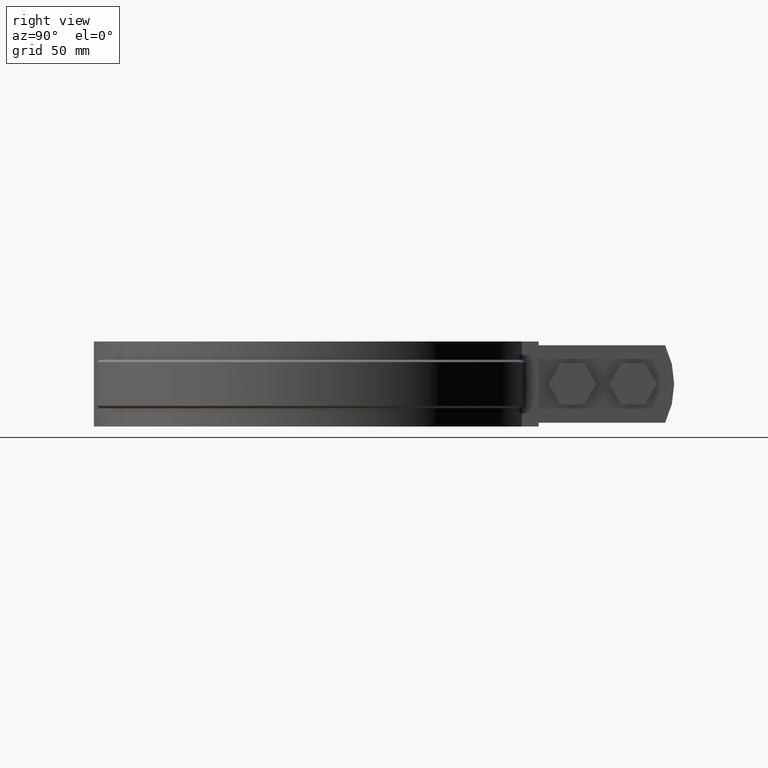
[diagram: clean part render]
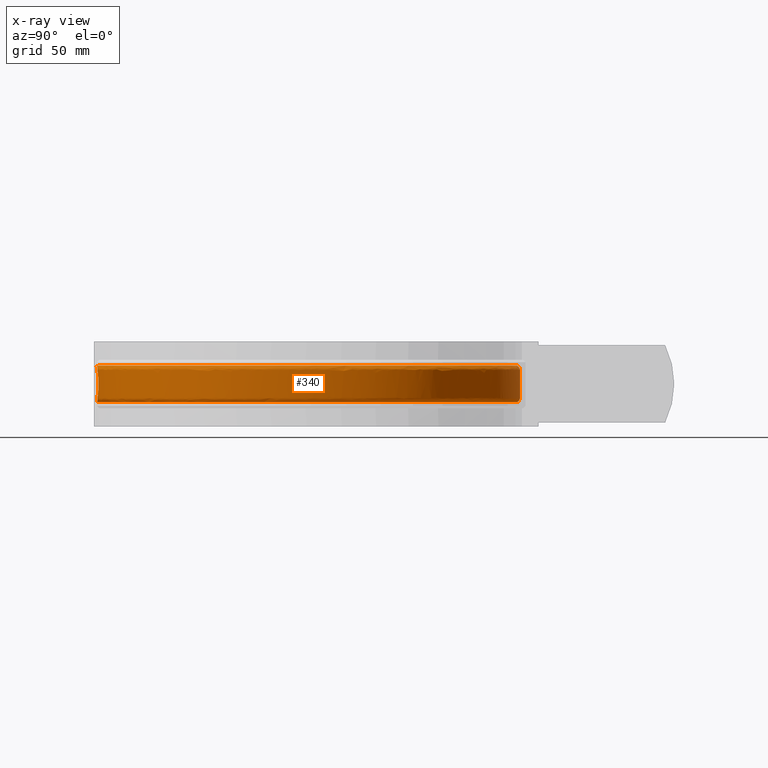
[diagram: x-ray — body ghosted, one internal face saturated and labeled with its STEP entity id]
A machine part, right view, then the same camera in x-ray: the body is ghosted and one INTERNAL B-rep face — a face not visible from any outside direction — is saturated and labeled: STEP entity #340.
In plain terms, the highlighted face is a freeform B-spline surface patch.
Its self-contained STEP definition (entity closure, byte-faithful):
#340 = ADVANCED_FACE( '', ( #529, #530 ), #531, .F. );
#529 = FACE_BOUND( '', #869, .T. );
#530 = FACE_OUTER_BOUND( '', #870, .T. );
#531 = B_SPLINE_SURFACE_WITH_KNOTS( '', 3, 3, ( ( #871, #872, #873, #874, #875, #876, #877, #878, #879, #880, #881, #882, #883, #884, #885, #886, #887 ), ( #888, #889, #890, #891, #892, #893, #894, #895, #896, #897, #898, #899, #900, #901, #902, #903, #904 ), ( #905, #906, #907, #908, #909, #910, #911, #912, #913, #914, #915, #916, #917, #918, #919, #920, #921 ), ( #922, #923, #924, #925, #926, #927, #928, #929, #930, #931, #932, #933, #934, #935, #936, #937, #938 ), ( #939, #940, #941, #942, #943, #944, #945, #946, #947, #948, #949, #950, #951, #952, #953, #954, #955 ), ( #956, #957, #958, #959, #960, #961, #962, #963, #964, #965, #966, #967, #968, #969, #970, #971, #972 ), ( #973, #974, #975, #976, #977, #978, #979, #980, #981, #982, #983, #984, #985, #986, #987, #988, #989 ), ( #990, #991, #992, #993, #994, #995, #996, #997, #998, #999, #1000, #1001, #1002, #1003, #1004, #1005, #1006 ), ( #1007, #1008, #1009, #1010, #1011, #1012, #1013, #1014, #1015, #1016, #1017, #1018, #1019, #1020, #1021, #1022, #1023 ), ( #1024, #1025, #1026, #1027, #1028, #1029, #1030, #1031, #1032, #1033, #1034, #1035, #1036, #1037, #1038, #1039, #1040 ), ( #1041, #1042, #1043, #1044, #1045, #1046, #1047, #1048, #1049, #1050, #1051, #1052, #1053, #1054, #1055, #1056, #1057 ), ( #1058, #1059, #1060, #1061, #1062, #1063, #1064, #1065, #1066, #1067, #1068, #1069, #1070, #1071, #1072, #1073, #1074 ), ( #1075, #1076, #1077, #1078, #1079, #1080, #1081, #1082, #1083, #1084, #1085, #1086, #1087, #1088, #1089, #1090, #1091 ), ( #1092, #1093, #1094, #1095, #1096, #1097, #1098, #1099, #1100, #1101, #1102, #1103, #1104, #1105, #1106, #1107, #1108 ), ( #1109, #1110, #1111, #1112, #1113, #1114, #1115, #1116, #1117, #1118, #1119, #1120, #1121, #1122, #1123, #1124, #1125 ), ( #1126, #1127, #1128, #1129, #1130, #1131, #1132, #1133, #1134, #1135, #1136, #1137, #1138, #1139, #1140, #1141, #1142 ), ( #1143, #1144, #1145, #1146, #1147, #1148, #1149, #1150, #1151, #1152, #1153, #1154, #1155, #1156, #1157, #1158, #1159 ), ( #1160, #1161, #1162, #1163, #1164, #1165, #1166, #1167, #1168, #1169, #1170, #1171, #1172, #1173, #1174, #1175, #1176 ), ( #1177, #1178, #1179, #1180, #1181, #1182, #1183, #1184, #1185, #1186, #1187, #1188, #1189, #1190, #1191, #1192, #1193 ), ( #1194, #1195, #1196, #1197, #1198, #1199, #1200, #1201, #1202, #1203, #1204, #1205, #1206, #1207, #1208, #1209, #1210 ), ( #1211, #1212, #1213, #1214, #1215, #1216, #1217, #1218, #1219, #1220, #1221, #1222, #1223, #1224, #1225, #1226, #1227 ), ( #1228, #1229, #1230, #1231, #1232, #1233, #1234, #1235, #1236, #1237, #1238, #1239, #1240, #1241, #1242, #1243, #1244 ) ), .UNSPECIFIED., .F., .F., .F., ( 4, 3, 1, 1, 1, 3, 3, 1, 1, 1, 3, 4 ), ( 4, 1, 1, 1, 1, 1, 1, 1, 1, 1, 1, 1, 1, 1, 4 ), ( 0.000000000000000, 0.0909090909090909, 0.181818181818182, 0.272727272727273, 0.363636363636364, 0.454545454545455, 0.545454545454545, 0.636363636363636, 0.727272727272727, 0.818181818181818, 0.909090909090909, 1.00000000000000 ), ( 2.94823482327086, 4.00000000000000, 5.00000000000000, 6.00000000000000, 7.00000000000000, 8.00000000000000, 9.00000000000000, 10.0000000000000, 11.0000000000000, 12.0000000000000, 13.0000000000000, 14.0000000000000, 15.0000000000000, 16.0000000000000, 17.0000000000000 ), .UNSPECIFIED. );
#869 = EDGE_LOOP( '', ( #2857, #2858, #2859, #2860, #2861, #2862 ) );
#870 = EDGE_LOOP( '', ( #2863, #2864, #2865, #2866 ) );
#871 = CARTESIAN_POINT( '', ( -4.57364982241989, 84.5836677296671, -25.5000000000000 ) );
#872 = CARTESIAN_POINT( '', ( -17.6289075040332, 83.8786057571758, -25.5000000000000 ) );
#873 = CARTESIAN_POINT( '', ( -42.7949631398830, 76.4840463416153, -25.5000000000000 ) );
#874 = CARTESIAN_POINT( '', ( -71.5765301860860, 50.3150624062422, -25.5000000000000 ) );
#875 = CARTESIAN_POINT( '', ( -86.2010382005230, 14.9802997650067, -25.5000000000000 ) );
#876 = CARTESIAN_POINT( '', ( -84.3560386872710, -23.2170530818947, -25.5000000000000 ) );
#877 = CARTESIAN_POINT( '', ( -66.3958128703364, -56.9787657435621, -25.5000000000000 ) );
#878 = CARTESIAN_POINT( '', ( -35.7510476442179, -79.8551501338733, -25.5000000000000 ) );
#879 = CARTESIAN_POINT( '', ( 1.72366984717810, -87.4757758923789, -25.5000000000000 ) );
#880 = CARTESIAN_POINT( '', ( 38.8690932069321, -78.3847895444415, -25.5000000000000 ) );
#881 = CARTESIAN_POINT( '', ( 68.5888824890438, -54.3189745457490, -25.5000000000000 ) );
#882 = CARTESIAN_POINT( '', ( 85.2051688816525, -19.8758519526583, -25.5000000000000 ) );
#883 = CARTESIAN_POINT( '', ( 85.5439845515432, 18.3641744961299, -25.5000000000000 ) );
#884 = CARTESIAN_POINT( '', ( 69.5389085496657, 53.0967294981207, -25.5000000000000 ) );
#885 = CARTESIAN_POINT( '', ( 40.2539121158271, 77.6822908585602, -25.5000000000000 ) );
#886 = CARTESIAN_POINT( '', ( 15.5913724137731, 84.1869914504030, -25.5000000000000 ) );
#887 = CARTESIAN_POINT( '', ( 3.16786611963157, 84.6476903824596, -25.5000000000000 ) );
#888 = CARTESIAN_POINT( '', ( -4.55496444969862, 85.3881924763306, -24.6952621458756 ) );
#889 = CARTESIAN_POINT( '', ( -17.7369452271908, 84.6860194912804, -24.6952621458756 ) );
#890 = CARTESIAN_POINT( '', ( -43.1436016186587, 77.2397006891381, -24.6952621458756 ) );
#891 = CARTESIAN_POINT( '', ( -72.2180949023918, 50.8438436478181, -24.6952621458756 ) );
#892 = CARTESIAN_POINT( '', ( -87.0065669347491, 15.1850363934881, -24.6952621458756 ) );
#893 = CARTESIAN_POINT( '', ( -85.1720234413700, -23.3754745127051, -24.6952621458756 ) );
#894 = CARTESIAN_POINT( '', ( -67.0662632546146, -57.4700799662433, -24.6952621458756 ) );
#895 = CARTESIAN_POINT( '', ( -36.1479063010775, -80.5854951527206, -24.6952621458757 ) );
#896 = CARTESIAN_POINT( '', ( 1.67622671237653, -88.3056245388004, -24.6952621458756 ) );
#897 = CARTESIAN_POINT( '', ( 39.1801292474759, -79.1556054897633, -24.6952621458757 ) );
#898 = CARTESIAN_POINT( '', ( 69.1989697488409, -54.8834981667082, -24.6952621458756 ) );
#899 = CARTESIAN_POINT( '', ( 85.9977817595525, -20.1262382431158, -24.6952621458757 ) );
#900 = CARTESIAN_POINT( '', ( 86.3675983528669, 18.4757716958029, -24.6952621458756 ) );
#901 = CARTESIAN_POINT( '', ( 70.2365577638987, 53.5489467694972, -24.6952621458756 ) );
#902 = CARTESIAN_POINT( '', ( 40.6908980108431, 78.3888980374747, -24.6952621458756 ) );
#903 = CARTESIAN_POINT( '', ( 15.8024552811718, 84.9727924215859, -24.6952621458756 ) );
#904 = CARTESIAN_POINT( '', ( 3.25958140787082, 85.4471847975519, -24.6952621458756 ) );
#905 = CARTESIAN_POINT( '', ( -4.53627907697736, 86.1927172229942, -23.8905242917513 ) );
#906 = CARTESIAN_POINT( '', ( -17.8449829503484, 85.4934332253851, -23.8905242917513 ) );
#907 = CARTESIAN_POINT( '', ( -43.4922400974343, 77.9953550366609, -23.8905242917513 ) );
#908 = CARTESIAN_POINT( '', ( -72.8596596186976, 51.3726248893941, -23.8905242917513 ) );
#909 = CARTESIAN_POINT( '', ( -87.8120956689751, 15.3897730219694, -23.8905242917513 ) );
#910 = CARTESIAN_POINT( '', ( -85.9880081954690, -23.5338959435156, -23.8905242917513 ) );
#911 = CARTESIAN_POINT( '', ( -67.7367136388929, -57.9613941889244, -23.8905242917513 ) );
#912 = CARTESIAN_POINT( '', ( -36.5447649579370, -81.3158401715679, -23.8905242917513 ) );
#913 = CARTESIAN_POINT( '', ( 1.62878357757494, -89.1354731852219, -23.8905242917512 ) );
#914 = CARTESIAN_POINT( '', ( 39.4911652880198, -79.9264214350850, -23.8905242917513 ) );
#915 = CARTESIAN_POINT( '', ( 69.8090570086379, -55.4480217876674, -23.8905242917513 ) );
#916 = CARTESIAN_POINT( '', ( 86.7903946374526, -20.3766245335732, -23.8905242917513 ) );
#917 = CARTESIAN_POINT( '', ( 87.1912121541906, 18.5873688954759, -23.8905242917513 ) );
#918 = CARTESIAN_POINT( '', ( 70.9342069781318, 54.0011640408736, -23.8905242917513 ) );
#919 = CARTESIAN_POINT( '', ( 41.1278839058592, 79.0955052163892, -23.8905242917513 ) );
#920 = CARTESIAN_POINT( '', ( 16.0135381485704, 85.7585933927688, -23.8905242917513 ) );
#921 = CARTESIAN_POINT( '', ( 3.35129669611007, 86.2466792126443, -23.8905242917513 ) );
#922 = CARTESIAN_POINT( '', ( -4.51759370425610, 86.9972419696578, -23.0857864376269 ) );
#923 = CARTESIAN_POINT( '', ( -17.9530206735060, 86.3008469594897, -23.0857864376269 ) );
#924 = CARTESIAN_POINT( '', ( -43.8408785762099, 78.7510093841837, -23.0857864376269 ) );
#925 = CARTESIAN_POINT( '', ( -73.5012243350034, 51.9014061309700, -23.0857864376269 ) );
#926 = CARTESIAN_POINT( '', ( -88.6176244032012, 15.5945096504508, -23.0857864376269 ) );
#927 = CARTESIAN_POINT( '', ( -86.8039929495680, -23.6923173743260, -23.0857864376269 ) );
#928 = CARTESIAN_POINT( '', ( -68.4071640231710, -58.4527084116056, -23.0857864376269 ) );
#929 = CARTESIAN_POINT( '', ( -36.9416236147966, -82.0461851904151, -23.0857864376269 ) );
#930 = CARTESIAN_POINT( '', ( 1.58134044277337, -89.9653218316434, -23.0857864376269 ) );
#931 = CARTESIAN_POINT( '', ( 39.8022013285636, -80.6972373804067, -23.0857864376269 ) );
#932 = CARTESIAN_POINT( '', ( 70.4191442684350, -56.0125454086266, -23.0857864376269 ) );
#933 = CARTESIAN_POINT( '', ( 87.5830075153526, -20.6270108240307, -23.0857864376269 ) );
#934 = CARTESIAN_POINT( '', ( 88.0148259555143, 18.6989660951490, -23.0857864376269 ) );
#935 = CARTESIAN_POINT( '', ( 71.6318561923648, 54.4533813122500, -23.0857864376269 ) );
#936 = CARTESIAN_POINT( '', ( 41.5648698008752, 79.8021123953037, -23.0857864376269 ) );
#937 = CARTESIAN_POINT( '', ( 16.2246210159691, 86.5443943639516, -23.0857864376269 ) );
#938 = CARTESIAN_POINT( '', ( 3.44301198434932, 87.0461736277367, -23.0857864376269 ) );
#939 = CARTESIAN_POINT( '', ( -4.51544455110414, 87.0897767518596, -22.9932271442431 ) );
#940 = CARTESIAN_POINT( '', ( -17.9654469502905, 86.3937140270870, -22.9932271442431 ) );
#941 = CARTESIAN_POINT( '', ( -43.8809782572135, 78.8379231935573, -22.9932271442431 ) );
#942 = CARTESIAN_POINT( '', ( -73.5750157895707, 51.9622254621647, -22.9932271442431 ) );
#943 = CARTESIAN_POINT( '', ( -88.7102746619882, 15.6180580365059, -22.9932271442431 ) );
#944 = CARTESIAN_POINT( '', ( -86.8978458382625, -23.7105386815722, -22.9932271442431 ) );
#945 = CARTESIAN_POINT( '', ( -68.4842778478776, -58.5092183633218, -22.9932271442431 ) );
#946 = CARTESIAN_POINT( '', ( -36.9872694815393, -82.1301879728423, -22.9932271442431 ) );
#947 = CARTESIAN_POINT( '', ( 1.57588363095490, -90.0607693167276, -22.9932271442431 ) );
#948 = CARTESIAN_POINT( '', ( 39.8379760544350, -80.7858950455858, -22.9932271442431 ) );
#949 = CARTESIAN_POINT( '', ( 70.4893152506746, -56.0774757548091, -22.9932271442431 ) );
#950 = CARTESIAN_POINT( '', ( 87.6741722189009, -20.6558097403473, -22.9932271442431 ) );
#951 = CARTESIAN_POINT( '', ( 88.1095563215347, 18.7118017756037, -22.9932271442431 ) );
#952 = CARTESIAN_POINT( '', ( 71.7120983705701, 54.5053944130132, -22.9932271442431 ) );
#953 = CARTESIAN_POINT( '', ( 41.6151310200462, 79.8833849001885, -22.9932271442431 ) );
#954 = CARTESIAN_POINT( '', ( 16.2488993333761, 86.6347755759951, -22.9932271442431 ) );
#955 = CARTESIAN_POINT( '', ( 3.45356088822952, 87.1381298315439, -22.9932271442431 ) );
#956 = CARTESIAN_POINT( '', ( -4.51156959102015, 87.2566185551464, -22.7898759680773 ) );
#957 = CARTESIAN_POINT( '', ( -17.9878517409813, 86.5611549466551, -22.7898759680773 ) );
#958 = CARTESIAN_POINT( '', ( -43.9532786715082, 78.9946302861919, -22.7898759680773 ) );
#959 = CARTESIAN_POINT( '', ( -73.7080630508732, 52.0718837619928, -22.7898759680773 ) );
#960 = CARTESIAN_POINT( '', ( -88.8773246715435, 15.6605161814372, -22.7898759680773 ) );
#961 = CARTESIAN_POINT( '', ( -87.0670642102181, -23.7433920118213, -22.7898759680773 ) );
#962 = CARTESIAN_POINT( '', ( -68.6233153996635, -58.6111067778579, -22.7898759680773 ) );
#963 = CARTESIAN_POINT( '', ( -37.0695697640788, -82.2816464338423, -22.7898759680773 ) );
#964 = CARTESIAN_POINT( '', ( 1.56604490542569, -90.2328627733904, -22.7898759680773 ) );
#965 = CARTESIAN_POINT( '', ( 39.9024785002662, -80.9457463402204, -22.7898759680773 ) );
#966 = CARTESIAN_POINT( '', ( 70.6158347381223, -56.1945462853421, -22.7898759680773 ) );
#967 = CARTESIAN_POINT( '', ( 87.8385437468192, -20.7077346816142, -22.7898759680773 ) );
#968 = CARTESIAN_POINT( '', ( 88.2803568001957, 18.7349447281510, -22.7898759680773 ) );
#969 = CARTESIAN_POINT( '', ( 71.8567763975008, 54.5991749279654, -22.7898759680773 ) );
#970 = CARTESIAN_POINT( '', ( 41.7057528623671, 80.0299206238370, -22.7898759680773 ) );
#971 = CARTESIAN_POINT( '', ( 16.2926735570849, 86.7977344552593, -22.7898759680773 ) );
#972 = CARTESIAN_POINT( '', ( 3.47258074329584, 87.3039284480376, -22.7898759680773 ) );
#973 = CARTESIAN_POINT( '', ( -4.50725055836836, 87.4425805213247, -22.4418734431229 ) );
#974 = CARTESIAN_POINT( '', ( -18.0128241330713, 86.7477846881715, -22.4418734431229 ) );
#975 = CARTESIAN_POINT( '', ( -44.0338647532507, 79.1692960982744, -22.4418734431229 ) );
#976 = CARTESIAN_POINT( '', ( -73.8563576018731, 52.1941089636034, -22.4418734431229 ) );
#977 = CARTESIAN_POINT( '', ( -89.0635187045437, 15.7078400532497, -22.4418734431229 ) );
#978 = CARTESIAN_POINT( '', ( -87.2556751011485, -23.7800103518792, -22.4418734431229 ) );
#979 = CARTESIAN_POINT( '', ( -68.7782867317480, -58.7246716610265, -22.4418734431229 ) );
#980 = CARTESIAN_POINT( '', ( -37.1613017044952, -82.4504621182032, -22.4418734431229 ) );
#981 = CARTESIAN_POINT( '', ( 1.55507865651172, -90.4246782353248, -22.4418734431229 ) );
#982 = CARTESIAN_POINT( '', ( 39.9743729620484, -81.1239166815903, -22.4418734431229 ) );
#983 = CARTESIAN_POINT( '', ( 70.7568534287750, -56.3250331633941, -22.4418734431229 ) );
#984 = CARTESIAN_POINT( '', ( 88.0217523427061, -20.7656102498557, -22.4418734431229 ) );
#985 = CARTESIAN_POINT( '', ( 88.4707311081346, 18.7607398758544, -22.4418734431229 ) );
#986 = CARTESIAN_POINT( '', ( 72.0180346062999, 54.7037027417756, -22.4418734431229 ) );
#987 = CARTESIAN_POINT( '', ( 41.8067600179162, 80.1932494224247, -22.4418734431229 ) );
#988 = CARTESIAN_POINT( '', ( 16.3414643310304, 86.9793685121755, -22.4418734431229 ) );
#989 = CARTESIAN_POINT( '', ( 3.49378028426746, 87.4887276776395, -22.4418734431229 ) );
#990 = CARTESIAN_POINT( '', ( -4.50459091119341, 87.5570953346794, -22.0642686993349 ) );
#991 = CARTESIAN_POINT( '', ( -18.0282020561918, 86.8627107155492, -22.0642686993349 ) );
#992 = CARTESIAN_POINT( '', ( -44.0834894173656, 79.2768547742830, -22.0642686993349 ) );
#993 = CARTESIAN_POINT( '', ( -73.9476769354890, 52.2693748711291, -22.0642686993349 ) );
#994 = CARTESIAN_POINT( '', ( -89.1781764239418, 15.7369819496235, -22.0642686993349 ) );
#995 = CARTESIAN_POINT( '', ( -87.3718211143115, -23.8025598143486, -22.0642686993349 ) );
#996 = CARTESIAN_POINT( '', ( -68.8737176068549, -58.7946045707875, -22.0642686993349 ) );
#997 = CARTESIAN_POINT( '', ( -37.2177899544924, -82.5544183033482, -22.0642686993349 ) );
#998 = CARTESIAN_POINT( '', ( 1.54832567377340, -90.5427976135686, -22.0642686993349 ) );
#999 = CARTESIAN_POINT( '', ( 40.0186453530186, -81.2336334360785, -22.0642686993349 ) );
#1000 = CARTESIAN_POINT( '', ( 70.8436923097112, -56.4053865861528, -22.0642686993349 ) );
#1001 = CARTESIAN_POINT( '', ( 88.1345716390071, -20.8012498488081, -22.0642686993349 ) );
#1002 = CARTESIAN_POINT( '', ( 88.5879630281297, 18.7766244493799, -22.0642686993349 ) );
#1003 = CARTESIAN_POINT( '', ( 72.1173369209724, 54.7680706517029, -22.0642686993349 ) );
#1004 = CARTESIAN_POINT( '', ( 41.8689599171908, 80.2938267999934, -22.0642686993349 ) );
#1005 = CARTESIAN_POINT( '', ( 16.3715095412775, 87.0912182121657, -22.0642686993349 ) );
#1006 = CARTESIAN_POINT( '', ( 3.50683489714052, 87.6025264813458, -22.0642686993349 ) );
#1007 = CARTESIAN_POINT( '', ( -4.50399220922760, 87.5828732816625, -21.8024714832809 ) );
#1008 = CARTESIAN_POINT( '', ( -18.0316637156513, 86.8885812291878, -21.8024714832809 ) );
#1009 = CARTESIAN_POINT( '', ( -44.0946602163490, 79.3010668545065, -21.8024714832808 ) );
#1010 = CARTESIAN_POINT( '', ( -73.9682334457911, 52.2863176623453, -21.8024714832808 ) );
#1011 = CARTESIAN_POINT( '', ( -89.2039865399020, 15.7435419590905, -21.8024714832808 ) );
#1012 = CARTESIAN_POINT( '', ( -87.3979662538083, -23.8076358288048, -21.8024714832808 ) );
#1013 = CARTESIAN_POINT( '', ( -68.8951996489330, -58.8103468733541, -21.8024714832808 ) );
#1014 = CARTESIAN_POINT( '', ( -37.2305057863655, -82.5778194420369, -21.8024714832809 ) );
#1015 = CARTESIAN_POINT( '', ( 1.54680553829131, -90.5693869689616, -21.8024714832808 ) );
#1016 = CARTESIAN_POINT( '', ( 40.0286113243529, -81.2583313122528, -21.8024714832809 ) );
#1017 = CARTESIAN_POINT( '', ( 70.8632402441946, -56.4234746064805, -21.8024714832808 ) );
#1018 = CARTESIAN_POINT( '', ( 88.1599679152923, -20.8092725287163, -21.8024714832809 ) );
#1019 = CARTESIAN_POINT( '', ( 88.6143526115367, 18.7802001587767, -21.8024714832808 ) );
#1020 = CARTESIAN_POINT( '', ( 72.1396904464940, 54.7825602406120, -21.8024714832808 ) );
#1021 = CARTESIAN_POINT( '', ( 41.8829614743596, 80.3164673495494, -21.8024714832809 ) );
#1022 = CARTESIAN_POINT( '', ( 16.3782728919232, 87.1163962267121, -21.8024714832808 ) );
#1023 = CARTESIAN_POINT( '', ( 3.50977356602246, 87.6281432504148, -21.8024714832808 ) );
#1024 = CARTESIAN_POINT( '', ( -4.50399220922760, 87.5828732816625, -21.6715728752538 ) );
#1025 = CARTESIAN_POINT( '', ( -18.0316637156513, 86.8885812291878, -21.6715728752538 ) );
#1026 = CARTESIAN_POINT( '', ( -44.0946602163490, 79.3010668545065, -21.6715728752538 ) );
#1027 = CARTESIAN_POINT( '', ( -73.9682334457911, 52.2863176623453, -21.6715728752538 ) );
#1028 = CARTESIAN_POINT( '', ( -89.2039865399020, 15.7435419590905, -21.6715728752538 ) );
#1029 = CARTESIAN_POINT( '', ( -87.3979662538083, -23.8076358288048, -21.6715728752538 ) );
#1030 = CARTESIAN_POINT( '', ( -68.8951996489330, -58.8103468733541, -21.6715728752538 ) );
#1031 = CARTESIAN_POINT( '', ( -37.2305057863655, -82.5778194420369, -21.6715728752538 ) );
#1032 = CARTESIAN_POINT( '', ( 1.54680553829131, -90.5693869689616, -21.6715728752538 ) );
#1033 = CARTESIAN_POINT( '', ( 40.0286113243529, -81.2583313122528, -21.6715728752538 ) );
#1034 = CARTESIAN_POINT( '', ( 70.8632402441946, -56.4234746064805, -21.6715728752538 ) );
#1035 = CARTESIAN_POINT( '', ( 88.1599679152923, -20.8092725287163, -21.6715728752538 ) );
#1036 = CARTESIAN_POINT( '', ( 88.6143526115367, 18.7802001587767, -21.6715728752538 ) );
#1037 = CARTESIAN_POINT( '', ( 72.1396904464940, 54.7825602406120, -21.6715728752538 ) );
#1038 = CARTESIAN_POINT( '', ( 41.8829614743596, 80.3164673495494, -21.6715728752538 ) );
#1039 = CARTESIAN_POINT( '', ( 16.3782728919232, 87.1163962267121, -21.6715728752538 ) );
#1040 = CARTESIAN_POINT( '', ( 3.50977356602246, 87.6281432504148, -21.6715728752538 ) );
#1041 = CARTESIAN_POINT( '', ( -4.50399220922760, 87.5828732816625, -17.8905242917513 ) );
#1042 = CARTESIAN_POINT( '', ( -18.0316637156513, 86.8885812291878, -17.8905242917513 ) );
#1043 = CARTESIAN_POINT( '', ( -44.0946602163490, 79.3010668545065, -17.8905242917513 ) );
#1044 = CARTESIAN_POINT( '', ( -73.9682334457911, 52.2863176623453, -17.8905242917513 ) );
#1045 = CARTESIAN_POINT( '', ( -89.2039865399020, 15.7435419590905, -17.8905242917513 ) );
#1046 = CARTESIAN_POINT( '', ( -87.3979662538083, -23.8076358288048, -17.8905242917513 ) );
#1047 = CARTESIAN_POINT( '', ( -68.8951996489330, -58.8103468733541, -17.8905242917513 ) );
#1048 = CARTESIAN_POINT( '', ( -37.2305057863655, -82.5778194420369, -17.8905242917513 ) );
#1049 = CARTESIAN_POINT( '', ( 1.54680553829131, -90.5693869689616, -17.8905242917513 ) );
#1050 = CARTESIAN_POINT( '', ( 40.0286113243529, -81.2583313122528, -17.8905242917513 ) );
#1051 = CARTESIAN_POINT( '', ( 70.8632402441946, -56.4234746064805, -17.8905242917513 ) );
#1052 = CARTESIAN_POINT( '', ( 88.1599679152923, -20.8092725287163, -17.8905242917513 ) );
#1053 = CARTESIAN_POINT( '', ( 88.6143526115367, 18.7802001587767, -17.8905242917513 ) );
#1054 = CARTESIAN_POINT( '', ( 72.1396904464940, 54.7825602406120, -17.8905242917513 ) );
#1055 = CARTESIAN_POINT( '', ( 41.8829614743596, 80.3164673495494, -17.8905242917513 ) );
#1056 = CARTESIAN_POINT( '', ( 16.3782728919232, 87.1163962267121, -17.8905242917513 ) );
#1057 = CARTESIAN_POINT( '', ( 3.50977356602246, 87.6281432504148, -17.8905242917513 ) );
#1058 = CARTESIAN_POINT( '', ( -4.50399220922760, 87.5828732816625, -14.1094757082487 ) );
#1059 = CARTESIAN_POINT( '', ( -18.0316637156513, 86.8885812291878, -14.1094757082487 ) );
#1060 = CARTESIAN_POINT( '', ( -44.0946602163490, 79.3010668545065, -14.1094757082487 ) );
#1061 = CARTESIAN_POINT( '', ( -73.9682334457911, 52.2863176623453, -14.1094757082487 ) );
#1062 = CARTESIAN_POINT( '', ( -89.2039865399020, 15.7435419590905, -14.1094757082487 ) );
#1063 = CARTESIAN_POINT( '', ( -87.3979662538083, -23.8076358288048, -14.1094757082487 ) );
#1064 = CARTESIAN_POINT( '', ( -68.8951996489330, -58.8103468733541, -14.1094757082487 ) );
#1065 = CARTESIAN_POINT( '', ( -37.2305057863655, -82.5778194420369, -14.1094757082487 ) );
#1066 = CARTESIAN_POINT( '', ( 1.54680553829131, -90.5693869689616, -14.1094757082487 ) );
#1067 = CARTESIAN_POINT( '', ( 40.0286113243529, -81.2583313122528, -14.1094757082488 ) );
#1068 = CARTESIAN_POINT( '', ( 70.8632402441946, -56.4234746064805, -14.1094757082487 ) );
#1069 = CARTESIAN_POINT( '', ( 88.1599679152923, -20.8092725287163, -14.1094757082488 ) );
#1070 = CARTESIAN_POINT( '', ( 88.6143526115367, 18.7802001587767, -14.1094757082487 ) );
#1071 = CARTESIAN_POINT( '', ( 72.1396904464940, 54.7825602406120, -14.1094757082487 ) );
#1072 = CARTESIAN_POINT( '', ( 41.8829614743596, 80.3164673495494, -14.1094757082487 ) );
#1073 = CARTESIAN_POINT( '', ( 16.3782728919232, 87.1163962267121, -14.1094757082487 ) );
#1074 = CARTESIAN_POINT( '', ( 3.50977356602246, 87.6281432504148, -14.1094757082487 ) );
#1075 = CARTESIAN_POINT( '', ( -4.50399220922760, 87.5828732816625, -10.3284271247462 ) );
#1076 = CARTESIAN_POINT( '', ( -18.0316637156513, 86.8885812291878, -10.3284271247462 ) );
#1077 = CARTESIAN_POINT( '', ( -44.0946602163490, 79.3010668545065, -10.3284271247462 ) );
#1078 = CARTESIAN_POINT( '', ( -73.9682334457911, 52.2863176623453, -10.3284271247462 ) );
#1079 = CARTESIAN_POINT( '', ( -89.2039865399020, 15.7435419590905, -10.3284271247462 ) );
#1080 = CARTESIAN_POINT( '', ( -87.3979662538083, -23.8076358288048, -10.3284271247462 ) );
#1081 = CARTESIAN_POINT( '', ( -68.8951996489330, -58.8103468733541, -10.3284271247462 ) );
#1082 = CARTESIAN_POINT( '', ( -37.2305057863655, -82.5778194420369, -10.3284271247462 ) );
#1083 = CARTESIAN_POINT( '', ( 1.54680553829131, -90.5693869689616, -10.3284271247462 ) );
#1084 = CARTESIAN_POINT( '', ( 40.0286113243529, -81.2583313122528, -10.3284271247462 ) );
#1085 = CARTESIAN_POINT( '', ( 70.8632402441946, -56.4234746064805, -10.3284271247462 ) );
#1086 = CARTESIAN_POINT( '', ( 88.1599679152923, -20.8092725287163, -10.3284271247462 ) );
#1087 = CARTESIAN_POINT( '', ( 88.6143526115367, 18.7802001587767, -10.3284271247462 ) );
#1088 = CARTESIAN_POINT( '', ( 72.1396904464940, 54.7825602406120, -10.3284271247462 ) );
#1089 = CARTESIAN_POINT( '', ( 41.8829614743596, 80.3164673495494, -10.3284271247462 ) );
#1090 = CARTESIAN_POINT( '', ( 16.3782728919232, 87.1163962267121, -10.3284271247462 ) );
#1091 = CARTESIAN_POINT( '', ( 3.50977356602246, 87.6281432504148, -10.3284271247462 ) );
#1092 = CARTESIAN_POINT( '', ( -4.50399220922760, 87.5828732816625, -10.1975285167192 ) );
#1093 = CARTESIAN_POINT( '', ( -18.0316637156513, 86.8885812291878, -10.1975285167192 ) );
#1094 = CARTESIAN_POINT( '', ( -44.0946602163490, 79.3010668545065, -10.1975285167192 ) );
#1095 = CARTESIAN_POINT( '', ( -73.9682334457911, 52.2863176623453, -10.1975285167192 ) );
#1096 = CARTESIAN_POINT( '', ( -89.2039865399020, 15.7435419590905, -10.1975285167192 ) );
#1097 = CARTESIAN_POINT( '', ( -87.3979662538083, -23.8076358288048, -10.1975285167192 ) );
#1098 = CARTESIAN_POINT( '', ( -68.8951996489330, -58.8103468733541, -10.1975285167192 ) );
#1099 = CARTESIAN_POINT( '', ( -37.2305057863655, -82.5778194420369, -10.1975285167192 ) );
#1100 = CARTESIAN_POINT( '', ( 1.54680553829131, -90.5693869689616, -10.1975285167192 ) );
#1101 = CARTESIAN_POINT( '', ( 40.0286113243529, -81.2583313122528, -10.1975285167192 ) );
#1102 = CARTESIAN_POINT( '', ( 70.8632402441946, -56.4234746064805, -10.1975285167192 ) );
#1103 = CARTESIAN_POINT( '', ( 88.1599679152923, -20.8092725287163, -10.1975285167192 ) );
#1104 = CARTESIAN_POINT( '', ( 88.6143526115367, 18.7802001587767, -10.1975285167192 ) );
#1105 = CARTESIAN_POINT( '', ( 72.1396904464940, 54.7825602406120, -10.1975285167192 ) );
#1106 = CARTESIAN_POINT( '', ( 41.8829614743596, 80.3164673495494, -10.1975285167192 ) );
#1107 = CARTESIAN_POINT( '', ( 16.3782728919232, 87.1163962267121, -10.1975285167192 ) );
#1108 = CARTESIAN_POINT( '', ( 3.50977356602246, 87.6281432504148, -10.1975285167192 ) );
#1109 = CARTESIAN_POINT( '', ( -4.50459091119341, 87.5570953346794, -9.93573130066511 ) );
#1110 = CARTESIAN_POINT( '', ( -18.0282020561918, 86.8627107155492, -9.93573130066511 ) );
#1111 = CARTESIAN_POINT( '', ( -44.0834894173656, 79.2768547742830, -9.93573130066511 ) );
#1112 = CARTESIAN_POINT( '', ( -73.9476769354890, 52.2693748711291, -9.93573130066510 ) );
#1113 = CARTESIAN_POINT( '', ( -89.1781764239418, 15.7369819496235, -9.93573130066510 ) );
#1114 = CARTESIAN_POINT( '', ( -87.3718211143115, -23.8025598143486, -9.93573130066510 ) );
#1115 = CARTESIAN_POINT( '', ( -68.8737176068549, -58.7946045707875, -9.93573130066510 ) );
#1116 = CARTESIAN_POINT( '', ( -37.2177899544924, -82.5544183033482, -9.93573130066511 ) );
#1117 = CARTESIAN_POINT( '', ( 1.54832567377340, -90.5427976135686, -9.93573130066510 ) );
#1118 = CARTESIAN_POINT( '', ( 40.0186453530186, -81.2336334360785, -9.93573130066511 ) );
#1119 = CARTESIAN_POINT( '', ( 70.8436923097112, -56.4053865861528, -9.93573130066511 ) );
#1120 = CARTESIAN_POINT( '', ( 88.1345716390071, -20.8012498488081, -9.93573130066511 ) );
#1121 = CARTESIAN_POINT( '', ( 88.5879630281297, 18.7766244493799, -9.93573130066511 ) );
#1122 = CARTESIAN_POINT( '', ( 72.1173369209724, 54.7680706517029, -9.93573130066510 ) );
#1123 = CARTESIAN_POINT( '', ( 41.8689599171908, 80.2938267999934, -9.93573130066511 ) );
#1124 = CARTESIAN_POINT( '', ( 16.3715095412775, 87.0912182121657, -9.93573130066510 ) );
#1125 = CARTESIAN_POINT( '', ( 3.50683489714052, 87.6025264813458, -9.93573130066510 ) );
#1126 = CARTESIAN_POINT( '', ( -4.50725055836836, 87.4425805213247, -9.55812655687709 ) );
#1127 = CARTESIAN_POINT( '', ( -18.0128241330713, 86.7477846881715, -9.55812655687709 ) );
#1128 = CARTESIAN_POINT( '', ( -44.0338647532507, 79.1692960982744, -9.55812655687708 ) );
#1129 = CARTESIAN_POINT( '', ( -73.8563576018731, 52.1941089636034, -9.55812655687708 ) );
#1130 = CARTESIAN_POINT( '', ( -89.0635187045437, 15.7078400532497, -9.55812655687708 ) );
#1131 = CARTESIAN_POINT( '', ( -87.2556751011485, -23.7800103518792, -9.55812655687708 ) );
#1132 = CARTESIAN_POINT( '', ( -68.7782867317480, -58.7246716610265, -9.55812655687708 ) );
#1133 = CARTESIAN_POINT( '', ( -37.1613017044952, -82.4504621182032, -9.55812655687709 ) );
#1134 = CARTESIAN_POINT( '', ( 1.55507865651172, -90.4246782353248, -9.55812655687708 ) );
#1135 = CARTESIAN_POINT( '', ( 39.9743729620484, -81.1239166815903, -9.55812655687709 ) );
#1136 = CARTESIAN_POINT( '', ( 70.7568534287750, -56.3250331633941, -9.55812655687708 ) );
#1137 = CARTESIAN_POINT( '', ( 88.0217523427061, -20.7656102498557, -9.55812655687709 ) );
#1138 = CARTESIAN_POINT( '', ( 88.4707311081346, 18.7607398758544, -9.55812655687708 ) );
#1139 = CARTESIAN_POINT( '', ( 72.0180346062999, 54.7037027417756, -9.55812655687708 ) );
#1140 = CARTESIAN_POINT( '', ( 41.8067600179162, 80.1932494224247, -9.55812655687709 ) );
#1141 = CARTESIAN_POINT( '', ( 16.3414643310304, 86.9793685121755, -9.55812655687708 ) );
#1142 = CARTESIAN_POINT( '', ( 3.49378028426746, 87.4887276776395, -9.55812655687708 ) );
#1143 = CARTESIAN_POINT( '', ( -4.51156959102015, 87.2566185551464, -9.21012403192274 ) );
#1144 = CARTESIAN_POINT( '', ( -17.9878517409813, 86.5611549466551, -9.21012403192274 ) );
#1145 = CARTESIAN_POINT( '', ( -43.9532786715082, 78.9946302861919, -9.21012403192274 ) );
#1146 = CARTESIAN_POINT( '', ( -73.7080630508732, 52.0718837619928, -9.21012403192274 ) );
#1147 = CARTESIAN_POINT( '', ( -88.8773246715434, 15.6605161814372, -9.21012403192273 ) );
#1148 = CARTESIAN_POINT( '', ( -87.0670642102181, -23.7433920118213, -9.21012403192274 ) );
#1149 = CARTESIAN_POINT( '', ( -68.6233153996635, -58.6111067778579, -9.21012403192274 ) );
#1150 = CARTESIAN_POINT( '', ( -37.0695697640788, -82.2816464338423, -9.21012403192274 ) );
#1151 = CARTESIAN_POINT( '', ( 1.56604490542569, -90.2328627733904, -9.21012403192273 ) );
#1152 = CARTESIAN_POINT( '', ( 39.9024785002662, -80.9457463402204, -9.21012403192274 ) );
#1153 = CARTESIAN_POINT( '', ( 70.6158347381223, -56.1945462853421, -9.21012403192274 ) );
#1154 = CARTESIAN_POINT( '', ( 87.8385437468192, -20.7077346816142, -9.21012403192274 ) );
#1155 = CARTESIAN_POINT( '', ( 88.2803568001957, 18.7349447281510, -9.21012403192274 ) );
#1156 = CARTESIAN_POINT( '', ( 71.8567763975008, 54.5991749279655, -9.21012403192274 ) );
#1157 = CARTESIAN_POINT( '', ( 41.7057528623671, 80.0299206238370, -9.21012403192274 ) );
#1158 = CARTESIAN_POINT( '', ( 16.2926735570849, 86.7977344552593, -9.21012403192274 ) );
#1159 = CARTESIAN_POINT( '', ( 3.47258074329583, 87.3039284480376, -9.21012403192274 ) );
#1160 = CARTESIAN_POINT( '', ( -4.51544455110414, 87.0897767518596, -9.00677285575691 ) );
#1161 = CARTESIAN_POINT( '', ( -17.9654469502905, 86.3937140270870, -9.00677285575691 ) );
#1162 = CARTESIAN_POINT( '', ( -43.8809782572135, 78.8379231935573, -9.00677285575691 ) );
#1163 = CARTESIAN_POINT( '', ( -73.5750157895707, 51.9622254621647, -9.00677285575691 ) );
#1164 = CARTESIAN_POINT( '', ( -88.7102746619882, 15.6180580365059, -9.00677285575691 ) );
#1165 = CARTESIAN_POINT( '', ( -86.8978458382625, -23.7105386815722, -9.00677285575691 ) );
#1166 = CARTESIAN_POINT( '', ( -68.4842778478776, -58.5092183633218, -9.00677285575691 ) );
#1167 = CARTESIAN_POINT( '', ( -36.9872694815393, -82.1301879728423, -9.00677285575691 ) );
#1168 = CARTESIAN_POINT( '', ( 1.57588363095490, -90.0607693167276, -9.00677285575691 ) );
#1169 = CARTESIAN_POINT( '', ( 39.8379760544350, -80.7858950455858, -9.00677285575692 ) );
#1170 = CARTESIAN_POINT( '', ( 70.4893152506746, -56.0774757548091, -9.00677285575691 ) );
#1171 = CARTESIAN_POINT( '', ( 87.6741722189009, -20.6558097403473, -9.00677285575691 ) );
#1172 = CARTESIAN_POINT( '', ( 88.1095563215347, 18.7118017756037, -9.00677285575691 ) );
#1173 = CARTESIAN_POINT( '', ( 71.7120983705701, 54.5053944130133, -9.00677285575691 ) );
#1174 = CARTESIAN_POINT( '', ( 41.6151310200462, 79.8833849001885, -9.00677285575691 ) );
#1175 = CARTESIAN_POINT( '', ( 16.2488993333761, 86.6347755759951, -9.00677285575691 ) );
#1176 = CARTESIAN_POINT( '', ( 3.45356088822952, 87.1381298315439, -9.00677285575691 ) );
#1177 = CARTESIAN_POINT( '', ( -4.51759370425610, 86.9972419696578, -8.91421356237312 ) );
#1178 = CARTESIAN_POINT( '', ( -17.9530206735060, 86.3008469594897, -8.91421356237312 ) );
#1179 = CARTESIAN_POINT( '', ( -43.8408785762100, 78.7510093841837, -8.91421356237311 ) );
#1180 = CARTESIAN_POINT( '', ( -73.5012243350034, 51.9014061309700, -8.91421356237312 ) );
#1181 = CARTESIAN_POINT( '', ( -88.6176244032012, 15.5945096504508, -8.91421356237311 ) );
#1182 = CARTESIAN_POINT( '', ( -86.8039929495680, -23.6923173743260, -8.91421356237312 ) );
#1183 = CARTESIAN_POINT( '', ( -68.4071640231710, -58.4527084116056, -8.91421356237311 ) );
#1184 = CARTESIAN_POINT( '', ( -36.9416236147966, -82.0461851904152, -8.91421356237312 ) );
#1185 = CARTESIAN_POINT( '', ( 1.58134044277335, -89.9653218316434, -8.91421356237311 ) );
#1186 = CARTESIAN_POINT( '', ( 39.8022013285636, -80.6972373804067, -8.91421356237312 ) );
#1187 = CARTESIAN_POINT( '', ( 70.4191442684350, -56.0125454086266, -8.91421356237312 ) );
#1188 = CARTESIAN_POINT( '', ( 87.5830075153526, -20.6270108240307, -8.91421356237312 ) );
#1189 = CARTESIAN_POINT( '', ( 88.0148259555143, 18.6989660951490, -8.91421356237311 ) );
#1190 = CARTESIAN_POINT( '', ( 71.6318561923648, 54.4533813122500, -8.91421356237311 ) );
#1191 = CARTESIAN_POINT( '', ( 41.5648698008752, 79.8021123953037, -8.91421356237312 ) );
#1192 = CARTESIAN_POINT( '', ( 16.2246210159691, 86.5443943639516, -8.91421356237311 ) );
#1193 = CARTESIAN_POINT( '', ( 3.44301198434932, 87.0461736277367, -8.91421356237311 ) );
#1194 = CARTESIAN_POINT( '', ( -4.53627907697736, 86.1927172229942, -8.10947570824875 ) );
#1195 = CARTESIAN_POINT( '', ( -17.8449829503484, 85.4934332253851, -8.10947570824875 ) );
#1196 = CARTESIAN_POINT( '', ( -43.4922400974343, 77.9953550366609, -8.10947570824875 ) );
#1197 = CARTESIAN_POINT( '', ( -72.8596596186976, 51.3726248893941, -8.10947570824875 ) );
#1198 = CARTESIAN_POINT( '', ( -87.8120956689751, 15.3897730219694, -8.10947570824875 ) );
#1199 = CARTESIAN_POINT( '', ( -85.9880081954690, -23.5338959435156, -8.10947570824875 ) );
#1200 = CARTESIAN_POINT( '', ( -67.7367136388929, -57.9613941889244, -8.10947570824875 ) );
#1201 = CARTESIAN_POINT( '', ( -36.5447649579370, -81.3158401715679, -8.10947570824876 ) );
#1202 = CARTESIAN_POINT( '', ( 1.62878357757494, -89.1354731852219, -8.10947570824875 ) );
#1203 = CARTESIAN_POINT( '', ( 39.4911652880198, -79.9264214350850, -8.10947570824876 ) );
#1204 = CARTESIAN_POINT( '', ( 69.8090570086379, -55.4480217876674, -8.10947570824875 ) );
#1205 = CARTESIAN_POINT( '', ( 86.7903946374526, -20.3766245335732, -8.10947570824876 ) );
#1206 = CARTESIAN_POINT( '', ( 87.1912121541906, 18.5873688954759, -8.10947570824875 ) );
#1207 = CARTESIAN_POINT( '', ( 70.9342069781318, 54.0011640408736, -8.10947570824875 ) );
#1208 = CARTESIAN_POINT( '', ( 41.1278839058592, 79.0955052163892, -8.10947570824875 ) );
#1209 = CARTESIAN_POINT( '', ( 16.0135381485704, 85.7585933927688, -8.10947570824875 ) );
#1210 = CARTESIAN_POINT( '', ( 3.35129669611007, 86.2466792126443, -8.10947570824875 ) );
#1211 = CARTESIAN_POINT( '', ( -4.55496444969862, 85.3881924763306, -7.30473785412439 ) );
#1212 = CARTESIAN_POINT( '', ( -17.7369452271908, 84.6860194912804, -7.30473785412439 ) );
#1213 = CARTESIAN_POINT( '', ( -43.1436016186587, 77.2397006891381, -7.30473785412438 ) );
#1214 = CARTESIAN_POINT( '', ( -72.2180949023918, 50.8438436478181, -7.30473785412438 ) );
#1215 = CARTESIAN_POINT( '', ( -87.0065669347491, 15.1850363934881, -7.30473785412438 ) );
#1216 = CARTESIAN_POINT( '', ( -85.1720234413700, -23.3754745127051, -7.30473785412438 ) );
#1217 = CARTESIAN_POINT( '', ( -67.0662632546146, -57.4700799662433, -7.30473785412438 ) );
#1218 = CARTESIAN_POINT( '', ( -36.1479063010775, -80.5854951527206, -7.30473785412439 ) );
#1219 = CARTESIAN_POINT( '', ( 1.67622671237653, -88.3056245388004, -7.30473785412438 ) );
#1220 = CARTESIAN_POINT( '', ( 39.1801292474759, -79.1556054897633, -7.30473785412439 ) );
#1221 = CARTESIAN_POINT( '', ( 69.1989697488409, -54.8834981667082, -7.30473785412439 ) );
#1222 = CARTESIAN_POINT( '', ( 85.9977817595525, -20.1262382431158, -7.30473785412439 ) );
#1223 = CARTESIAN_POINT( '', ( 86.3675983528669, 18.4757716958029, -7.30473785412438 ) );
#1224 = CARTESIAN_POINT( '', ( 70.2365577638987, 53.5489467694972, -7.30473785412438 ) );
#1225 = CARTESIAN_POINT( '', ( 40.6908980108431, 78.3888980374747, -7.30473785412439 ) );
#1226 = CARTESIAN_POINT( '', ( 15.8024552811718, 84.9727924215859, -7.30473785412438 ) );
#1227 = CARTESIAN_POINT( '', ( 3.25958140787082, 85.4471847975519, -7.30473785412438 ) );
#1228 = CARTESIAN_POINT( '', ( -4.57364982241989, 84.5836677296671, -6.50000000000002 ) );
#1229 = CARTESIAN_POINT( '', ( -17.6289075040332, 83.8786057571758, -6.50000000000002 ) );
#1230 = CARTESIAN_POINT( '', ( -42.7949631398831, 76.4840463416153, -6.50000000000002 ) );
#1231 = CARTESIAN_POINT( '', ( -71.5765301860860, 50.3150624062422, -6.50000000000002 ) );
#1232 = CARTESIAN_POINT( '', ( -86.2010382005230, 14.9802997650067, -6.50000000000001 ) );
#1233 = CARTESIAN_POINT( '', ( -84.3560386872710, -23.2170530818947, -6.50000000000002 ) );
#1234 = CARTESIAN_POINT( '', ( -66.3958128703364, -56.9787657435621, -6.50000000000002 ) );
#1235 = CARTESIAN_POINT( '', ( -35.7510476442179, -79.8551501338733, -6.50000000000002 ) );
#1236 = CARTESIAN_POINT( '', ( 1.72366984717810, -87.4757758923789, -6.50000000000001 ) );
#1237 = CARTESIAN_POINT( '', ( 38.8690932069321, -78.3847895444415, -6.50000000000002 ) );
#1238 = CARTESIAN_POINT( '', ( 68.5888824890438, -54.3189745457490, -6.50000000000002 ) );
#1239 = CARTESIAN_POINT( '', ( 85.2051688816525, -19.8758519526583, -6.50000000000002 ) );
#1240 = CARTESIAN_POINT( '', ( 85.5439845515432, 18.3641744961299, -6.50000000000002 ) );
#1241 = CARTESIAN_POINT( '', ( 69.5389085496657, 53.0967294981207, -6.50000000000002 ) );
#1242 = CARTESIAN_POINT( '', ( 40.2539121158271, 77.6822908585602, -6.50000000000002 ) );
#1243 = CARTESIAN_POINT( '', ( 15.5913724137731, 84.1869914504030, -6.50000000000002 ) );
#1244 = CARTESIAN_POINT( '', ( 3.16786611963157, 84.6476903824596, -6.50000000000002 ) );
#2857 = ORIENTED_EDGE( '', *, *, #4687, .T. );
#2858 = ORIENTED_EDGE( '', *, *, #4643, .T. );
#2859 = ORIENTED_EDGE( '', *, *, #4629, .T. );
#2860 = ORIENTED_EDGE( '', *, *, #4632, .T. );
#2861 = ORIENTED_EDGE( '', *, *, #4686, .T. );
#2862 = ORIENTED_EDGE( '', *, *, #4685, .T. );
#2863 = ORIENTED_EDGE( '', *, *, #4682, .T. );
#2864 = ORIENTED_EDGE( '', *, *, #4658, .T. );
#2865 = ORIENTED_EDGE( '', *, *, #4644, .T. );
#2866 = ORIENTED_EDGE( '', *, *, #4650, .T. );
#4629 = EDGE_CURVE( '', #5028, #5034, #5036, .T. );
#4632 = EDGE_CURVE( '', #5034, #5039, #5041, .T. );
#4643 = EDGE_CURVE( '', #5056, #5028, #5059, .T. );
#4644 = EDGE_CURVE( '', #5060, #5061, #5062, .T. );
#4650 = EDGE_CURVE( '', #5061, #5072, #5073, .T. );
#4658 = EDGE_CURVE( '', #5085, #5060, #5086, .T. );
#4682 = EDGE_CURVE( '', #5072, #5085, #5122, .T. );
#4685 = EDGE_CURVE( '', #5123, #5125, #5127, .T. );
#4686 = EDGE_CURVE( '', #5039, #5123, #5128, .T. );
#4687 = EDGE_CURVE( '', #5125, #5056, #5129, .T. );
#5028 = VERTEX_POINT( '', #5680 );
#5034 = VERTEX_POINT( '', #5720 );
#5036 = B_SPLINE_CURVE_WITH_KNOTS( '', 3, ( #5723, #5724, #5725, #5726, #5727, #5728, #5729, #5730, #5731, #5732, #5733, #5734, #5735, #5736, #5737, #5738, #5739, #5740, #5741, #5742, #5743 ), .UNSPECIFIED., .F., .F., ( 4, 2, 2, 2, 2, 1, 2, 2, 2, 2, 4 ), ( 3.46944695195361E-018, 0.00137780946498861, 0.00275561892997723, 0.00413342839496584, 0.00482233312746014, 0.00551123785995444, 0.00620014259244875, 0.00688904732494305, 0.00826685678993165, 0.00964466625492026, 0.0110224757199089 ), .UNSPECIFIED. );
#5039 = VERTEX_POINT( '', #5746 );
#5041 = B_SPLINE_CURVE_WITH_KNOTS( '', 3, ( #5749, #5750, #5751, #5752, #5753 ), .UNSPECIFIED., .F., .F., ( 4, 1, 4 ), ( 0.000000000000000, 0.00954732283380189, 0.0160388802799734 ), .UNSPECIFIED. );
#5056 = VERTEX_POINT( '', #6074 );
#5059 = B_SPLINE_CURVE_WITH_KNOTS( '', 3, ( #6081, #6082, #6083, #6084, #6085, #6086, #6087, #6088, #6089, #6090, #6091, #6092, #6093, #6094, #6095, #6096, #6097, #6098, #6099, #6100, #6101, #6102, #6103, #6104 ), .UNSPECIFIED., .F., .F., ( 4, 2, 2, 2, 2, 2, 2, 2, 2, 2, 2, 4 ), ( 1.59933602078778E-017, 0.00137300955860066, 0.00274601911720131, 0.00343252389650163, 0.00411902867580196, 0.00480553345510228, 0.00549203823440261, 0.00686504779300326, 0.00823805735160391, 0.00892456213090424, 0.00961106691020456, 0.0109840764688052 ), .UNSPECIFIED. );
#5060 = VERTEX_POINT( '', #6105 );
#5061 = VERTEX_POINT( '', #6106 );
#5062 = B_SPLINE_CURVE_WITH_KNOTS( '', 3, ( #6107, #6108, #6109, #6110, #6111, #6112, #6113, #6114, #6115, #6116, #6117, #6118, #6119, #6120, #6121, #6122, #6123, #6124, #6125, #6126, #6127, #6128, #6129, #6130, #6131, #6132, #6133, #6134, #6135, #6136, #6137, #6138, #6139, #6140, #6141, #6142, #6143, #6144, #6145, #6146, #6147, #6148, #6149, #6150, #6151, #6152, #6153, #6154, #6155, #6156, #6157, #6158, #6159, #6160, #6161, #6162, #6163, #6164, #6165, #6166, #6167, #6168, #6169, #6170, #6171, #6172, #6173, #6174, #6175, #6176, #6177, #6178, #6179, #6180, #6181, #6182, #6183, #6184, #6185, #6186, #6187, #6188, #6189, #6190, #6191, #6192, #6193, #6194, #6195, #6196, #6197, #6198, #6199, #6200, #6201, #6202, #6203, #6204, #6205, #6206, #6207, #6208, #6209, #6210, #6211, #6212, #6213, #6214, #6215, #6216, #6217, #6218, #6219, #6220, #6221, #6222, #6223, #6224, #6225, #6226, #6227, #6228, #6229, #6230, #6231, #6232, #6233, #6234, #6235, #6236, #6237, #6238, #6239, #6240, #6241, #6242, #6243, #6244, #6245, #6246, #6247, #6248, #6249, #6250, #6251, #6252, #6253, #6254, #6255, #6256, #6257, #6258, #6259, #6260 ), .UNSPECIFIED., .F., .F., ( 4, 2, 2, 2, 2, 2, 2, 2, 2, 2, 2, 2, 2, 2, 2, 2, 2, 2, 2, 2, 2, 2, 2, 2, 2, 1, 2, 2, 2, 2, 2, 2, 2, 2, 2, 2, 2, 2, 2, 2, 2, 2, 2, 2, 2, 2, 2, 2, 2, 2, 2, 2, 2, 2, 2, 2, 2, 2, 2, 2, 2, 2, 2, 2, 2, 2, 2, 2, 2, 2, 1, 2, 2, 2, 2, 2, 2, 4 ), ( 8.09950546210633E-017, 0.00827436142974642, 0.0165487228594927, 0.0206859035743659, 0.0248230842892391, 0.0330974457189854, 0.0496461685784780, 0.0579205300082243, 0.0620577107230974, 0.0661948914379706, 0.0744692528677169, 0.0827436142974632, 0.0910179757272096, 0.0951551564420827, 0.0992923371569559, 0.107566698586702, 0.115841060016449, 0.119978240731322, 0.124115421446195, 0.132389782875941, 0.136526963590814, 0.140664144305688, 0.148938505735434, 0.165487228594927, 0.169624409309800, 0.173761590024673, 0.177898770739546, 0.182035951454419, 0.190310312884166, 0.194447493599039, 0.198584674313912, 0.215133397173404, 0.223407758603151, 0.227544939318024, 0.231682120032897, 0.235819300747770, 0.239956481462643, 0.248230842892389, 0.252368023607262, 0.256505204322135, 0.264779565751882, 0.281328288611374, 0.285465469326247, 0.289602650041120, 0.297877011470867, 0.306151372900613, 0.310288553615486, 0.314425734330359, 0.330974457189851, 0.339248818619598, 0.343385999334471, 0.347523180049344, 0.355797541479090, 0.364071902908836, 0.368209083623709, 0.372346264338583, 0.380620625768329, 0.397169348627821, 0.401306529342694, 0.405443710057567, 0.413718071487314, 0.421992432917060, 0.426129613631933, 0.430266794346806, 0.446815517206299, 0.455089878636045, 0.459227059350918, 0.463364240065791, 0.471638601495537, 0.475775782210410, 0.479912962925284, 0.484050143640157, 0.488187324355030, 0.496461685784776, 0.500598866499649, 0.504736047214522, 0.513010408644269, 0.529559131503761 ), .UNSPECIFIED. );
#5072 = VERTEX_POINT( '', #6272 );
#5073 = B_SPLINE_CURVE_WITH_KNOTS( '', 3, ( #6273, #6274, #6275, #6276, #6277, #6278, #6279, #6280, #6281, #6282, #6283, #6284, #6285, #6286, #6287, #6288, #6289, #6290, #6291, #6292, #6293, #6294, #6295, #6296, #6297, #6298, #6299, #6300, #6301, #6302, #6303, #6304, #6305, #6306, #6307, #6308, #6309, #6310, #6311, #6312 ), .UNSPECIFIED., .F., .F., ( 4, 2, 2, 2, 2, 2, 2, 2, 1, 1, 1, 1, 2, 2, 2, 2, 2, 2, 2, 2, 2, 4 ), ( 2.45326946669340E-017, 0.000559479355299499, 0.00111895871059897, 0.00167843806589845, 0.00223791742119792, 0.00279739677649739, 0.00335687613179686, 0.00363661580944660, 0.00391635548709634, 0.00447583484239581, 0.00895166968479164, 0.0134275045271875, 0.0145464632377864, 0.0148262029154362, 0.0151059425930859, 0.0153856822707357, 0.0156654219483854, 0.0159451616260351, 0.0162249013036849, 0.0167843806589843, 0.0173438600142838, 0.0179033393695833 ), .UNSPECIFIED. );
#5085 = VERTEX_POINT( '', #6368 );
#5086 = B_SPLINE_CURVE_WITH_KNOTS( '', 3, ( #6369, #6370, #6371, #6372, #6373, #6374, #6375, #6376, #6377, #6378, #6379, #6380, #6381, #6382, #6383, #6384, #6385, #6386, #6387, #6388, #6389, #6390, #6391, #6392, #6393, #6394, #6395, #6396, #6397, #6398, #6399, #6400, #6401, #6402, #6403, #6404, #6405, #6406, #6407, #6408 ), .UNSPECIFIED., .F., .F., ( 4, 2, 2, 2, 2, 2, 2, 2, 1, 1, 1, 1, 2, 2, 2, 2, 2, 2, 2, 2, 2, 4 ), ( 1.73472347597681E-018, 0.000559463126114304, 0.00111892625222861, 0.00167838937834291, 0.00223785250445721, 0.00279731563057151, 0.00335677875668582, 0.00363651031974297, 0.00391624188280012, 0.00447570500891442, 0.00895141001782885, 0.0134271150267433, 0.0145460412789719, 0.0148257728420290, 0.0151055044050862, 0.0153852359681433, 0.0156649675312005, 0.0159446990942576, 0.0162244306573148, 0.0167838937834291, 0.0173433569095434, 0.0179028200356577 ), .UNSPECIFIED. );
#5122 = B_SPLINE_CURVE_WITH_KNOTS( '', 3, ( #6587, #6588, #6589, #6590, #6591, #6592, #6593, #6594, #6595, #6596, #6597, #6598, #6599, #6600, #6601, #6602, #6603, #6604, #6605, #6606, #6607, #6608, #6609, #6610, #6611, #6612, #6613, #6614, #6615, #6616, #6617, #6618, #6619, #6620, #6621, #6622, #6623, #6624, #6625, #6626, #6627, #6628, #6629, #6630, #6631, #6632, #6633, #6634, #6635, #6636, #6637, #6638, #6639, #6640, #6641, #6642, #6643, #6644, #6645, #6646, #6647, #6648, #6649, #6650, #6651, #6652, #6653, #6654, #6655, #6656, #6657, #6658, #6659, #6660, #6661, #6662, #6663, #6664, #6665, #6666, #6667, #6668, #6669, #6670, #6671, #6672, #6673, #6674, #6675, #6676, #6677, #6678, #6679, #6680, #6681, #6682, #6683, #6684, #6685, #6686, #6687, #6688, #6689, #6690, #6691, #6692, #6693, #6694, #6695, #6696, #6697, #6698, #6699, #6700, #6701, #6702, #6703, #6704, #6705, #6706, #6707, #6708, #6709, #6710, #6711, #6712, #6713, #6714, #6715, #6716, #6717, #6718, #6719, #6720, #6721, #6722, #6723, #6724, #6725, #6726, #6727, #6728, #6729, #6730, #6731, #6732, #6733, #6734, #6735, #6736, #6737, #6738, #6739, #6740, #6741, #6742, #6743, #6744, #6745, #6746, #6747 ), .UNSPECIFIED., .F., .F., ( 4, 2, 2, 2, 2, 2, 2, 2, 2, 2, 2, 2, 2, 2, 2, 2, 1, 2, 2, 2, 2, 2, 2, 2, 2, 1, 2, 2, 2, 2, 2, 2, 2, 2, 1, 2, 2, 2, 2, 2, 2, 2, 2, 2, 2, 2, 2, 2, 2, 2, 2, 2, 2, 2, 2, 2, 2, 2, 2, 2, 2, 2, 2, 2, 2, 1, 2, 2, 2, 2, 2, 2, 2, 2, 2, 1, 2, 2, 2, 2, 2, 2, 4 ), ( 1.10165184678181E-016, 0.00827436693478284, 0.0165487338695656, 0.0206859173369569, 0.0248231008043483, 0.0330974677391310, 0.0496462016086964, 0.0579205685434791, 0.0620577520108705, 0.0661949354782619, 0.0744693024130446, 0.0786064858804359, 0.0827436693478272, 0.0992924032173926, 0.107566770152175, 0.111703953619567, 0.115841137086958, 0.119978320554349, 0.124115504021741, 0.132389870956523, 0.136527054423915, 0.140664237891306, 0.148938604826089, 0.165487338695654, 0.169624522163045, 0.173761705630437, 0.177898889097828, 0.182036072565219, 0.190310439500002, 0.194447622967393, 0.198584806434785, 0.215133540304350, 0.223407907239133, 0.227545090706524, 0.231682274173915, 0.235819457641307, 0.239956641108698, 0.248231008043481, 0.252368191510872, 0.256505374978264, 0.264779741913046, 0.268916925380438, 0.273054108847829, 0.281328475782612, 0.289602842717394, 0.293740026184786, 0.297877209652177, 0.306151576586960, 0.310288760054351, 0.314425943521743, 0.322700310456525, 0.326837493923917, 0.330974677391308, 0.339249044326091, 0.347523411260873, 0.355797778195656, 0.364072145130439, 0.368209328597830, 0.372346512065221, 0.380620879000004, 0.384758062467395, 0.388895245934787, 0.397169612869569, 0.413718346739134, 0.417855530206526, 0.421992713673917, 0.426129897141308, 0.430267080608700, 0.438541447543482, 0.442678631010874, 0.446815814478265, 0.455090181413048, 0.463364548347830, 0.471638915282613, 0.475776098750004, 0.479913282217395, 0.484050465684787, 0.488187649152178, 0.496462016086961, 0.500599199554352, 0.504736383021743, 0.513010749956526, 0.529559483826091 ), .UNSPECIFIED. );
#5123 = VERTEX_POINT( '', #6748 );
#5125 = VERTEX_POINT( '', #6751 );
#5127 = B_SPLINE_CURVE_WITH_KNOTS( '', 3, ( #6754, #6755, #6756, #6757, #6758, #6759, #6760, #6761, #6762, #6763, #6764, #6765, #6766, #6767, #6768, #6769, #6770, #6771, #6772, #6773, #6774 ), .UNSPECIFIED., .F., .F., ( 4, 2, 2, 2, 2, 1, 2, 2, 2, 2, 4 ), ( 0.000000000000000, 0.00137781578035740, 0.00275563156071481, 0.00413344734107221, 0.00482235523125091, 0.00551126312142961, 0.00620017101160831, 0.00688907890178701, 0.00826689468214440, 0.00964471046250180, 0.0110225262428592 ), .UNSPECIFIED. );
#5128 = B_SPLINE_CURVE_WITH_KNOTS( '', 3, ( #6775, #6776, #6777, #6778, #6779, #6780, #6781, #6782, #6783, #6784, #6785, #6786, #6787, #6788, #6789, #6790, #6791, #6792, #6793, #6794, #6795, #6796, #6797, #6798 ), .UNSPECIFIED., .F., .F., ( 4, 2, 2, 2, 2, 2, 2, 2, 2, 2, 2, 4 ), ( 3.46944695195361E-018, 0.00137300562268615, 0.00274601124537229, 0.00343251405671536, 0.00411901686805843, 0.00480551967940150, 0.00549202249074457, 0.00686502811343070, 0.00823803373611684, 0.00892453654745991, 0.00961103935880298, 0.0109840449814891 ), .UNSPECIFIED. );
#5129 = B_SPLINE_CURVE_WITH_KNOTS( '', 3, ( #6799, #6800, #6801, #6802, #6803 ), .UNSPECIFIED., .F., .F., ( 4, 1, 4 ), ( 0.000000000000000, 0.00649158225016433, 0.0160389415639216 ), .UNSPECIFIED. );
#5680 = CARTESIAN_POINT( '', ( -15.0000000000000, -86.3972772051007, -16.0000000000000 ) );
#5720 = CARTESIAN_POINT( '', ( -7.99999999999999, -86.8221021314555, -9.00000000000001 ) );
#5723 = CARTESIAN_POINT( '', ( -15.0000000000000, -86.3972772051007, -16.0000000000000 ) );
#5724 = CARTESIAN_POINT( '', ( -15.0000000000000, -86.3972772051007, -15.5357138341641 ) );
#5725 = CARTESIAN_POINT( '', ( -14.9542625292313, -86.4052659940505, -15.0783087064987 ) );
#5726 = CARTESIAN_POINT( '', ( -14.7740222406583, -86.4363178867372, -14.1768420668925 ) );
#5727 = CARTESIAN_POINT( '', ( -14.6375282106576, -86.4597125997052, -13.7300415070226 ) );
#5728 = CARTESIAN_POINT( '', ( -14.2854301466692, -86.5186982250550, -12.8850585593855 ) );
#5729 = CARTESIAN_POINT( '', ( -14.0695657683645, -86.5543424279322, -12.4825939395796 ) );
#5730 = CARTESIAN_POINT( '', ( -13.6850212123226, -86.6158283203495, -11.9093426789770 ) );
#5731 = CARTESIAN_POINT( '', ( -13.5465877317573, -86.6376696186560, -11.7235806011510 ) );
#5732 = CARTESIAN_POINT( '', ( -13.2553504522859, -86.6828264185359, -11.3703466690700 ) );
#5733 = CARTESIAN_POINT( '', ( -12.9483687092207, -86.7296792957698, -11.0332298204460 ) );
#5734 = CARTESIAN_POINT( '', ( -12.6103933810241, -86.7793488023299, -10.7277620003530 ) );
#5735 = CARTESIAN_POINT( '', ( -12.2567139405408, -86.8301819127106, -10.4382909927686 ) );
#5736 = CARTESIAN_POINT( '', ( -12.0709248091229, -86.8602381252793, -10.3008424727402 ) );
#5737 = CARTESIAN_POINT( '', ( -11.4969999042055, -86.9091152088818, -9.91869315375361 ) );
#5738 = CARTESIAN_POINT( '', ( -11.0955835528332, -86.8969831750906, -9.70524114226136 ) );
#5739 = CARTESIAN_POINT( '', ( -10.2554878794067, -86.8490268360700, -9.35775632519402 ) );
#5740 = CARTESIAN_POINT( '', ( -9.81208578091751, -86.8120276515068, -9.22317093213584 ) );
#5741 = CARTESIAN_POINT( '', ( -8.91512750353199, -86.7763474537308, -9.04502992495788 ) );
#5742 = CARTESIAN_POINT( '', ( -8.46063498110452, -86.7793309149705, -9.00000000000001 ) );
#5743 = CARTESIAN_POINT( '', ( -7.99999999999997, -86.8221021314555, -9.00000000000001 ) );
#5746 = CARTESIAN_POINT( '', ( 7.99999999999999, -86.8242867167930, -9.00000000000001 ) );
#5749 = CARTESIAN_POINT( '', ( -8.00000000000004, -86.8221021314555, -9.00000000000001 ) );
#5750 = CARTESIAN_POINT( '', ( -4.83397418268721, -87.1160762784140, -9.00000000000001 ) );
#5751 = CARTESIAN_POINT( '', ( 0.511110599959237, -87.3195050842274, -9.00000000000001 ) );
#5752 = CARTESIAN_POINT( '', ( 5.84746229762106, -87.0241278609737, -9.00000000000001 ) );
#5753 = CARTESIAN_POINT( '', ( 7.99999999999998, -86.8242867167931, -9.00000000000001 ) );
#6074 = CARTESIAN_POINT( '', ( -8.00000000000001, -86.8221021314555, -23.0000000000000 ) );
#6081 = CARTESIAN_POINT( '', ( -7.99999999999999, -86.8221021314555, -23.0000000000000 ) );
#6082 = CARTESIAN_POINT( '', ( -8.46192350062857, -86.7792112724123, -23.0000000000000 ) );
#6083 = CARTESIAN_POINT( '', ( -8.91766158571437, -86.7763421529893, -22.9547203041343 ) );
#6084 = CARTESIAN_POINT( '', ( -9.81702919866644, -86.8123312869453, -22.7755916483970 ) );
#6085 = CARTESIAN_POINT( '', ( -10.2614318252625, -86.8495184740199, -22.6404109846133 ) );
#6086 = CARTESIAN_POINT( '', ( -10.8949764848510, -86.8854532306413, -22.3774128091555 ) );
#6087 = CARTESIAN_POINT( '', ( -11.1017187382953, -86.8942219020464, -22.2794928265233 ) );
#6088 = CARTESIAN_POINT( '', ( -11.5064427691815, -86.8975717494405, -22.0628003757590 ) );
#6089 = CARTESIAN_POINT( '', ( -11.7057416433481, -86.8920347599005, -21.9431060147764 ) );
#6090 = CARTESIAN_POINT( '', ( -12.0883339069988, -86.8579926722448, -21.6866999301001 ) );
#6091 = CARTESIAN_POINT( '', ( -12.2710423205154, -86.8281488161564, -21.5506772287302 ) );
#6092 = CARTESIAN_POINT( '', ( -12.6226536004281, -86.7775583477107, -21.2614535911311 ) );
#6093 = CARTESIAN_POINT( '', ( -12.7911983356133, -86.7527670155576, -21.1084708589731 ) );
#6094 = CARTESIAN_POINT( '', ( -13.2749305804172, -86.6803064281120, -20.6242114359556 ) );
#6095 = CARTESIAN_POINT( '', ( -13.5694397072067, -86.6343364027820, -20.2648968687785 ) );
#6096 = CARTESIAN_POINT( '', ( -14.0757520385413, -86.5533248148936, -19.5061718611171 ) );
#6097 = CARTESIAN_POINT( '', ( -14.2910214016913, -86.5177734169994, -19.1040703222549 ) );
#6098 = CARTESIAN_POINT( '', ( -14.5554180676143, -86.4734619591513, -18.4656732689686 ) );
#6099 = CARTESIAN_POINT( '', ( -14.6333366996612, -86.4602665347711, -18.2474973002470 ) );
#6100 = CARTESIAN_POINT( '', ( -14.7660005255019, -86.4376689406069, -17.8093194230424 ) );
#6101 = CARTESIAN_POINT( '', ( -14.8212677660601, -86.4281791817739, -17.5881208933298 ) );
#6102 = CARTESIAN_POINT( '', ( -14.9544246001125, -86.4052364733982, -16.9182952215031 ) );
#6103 = CARTESIAN_POINT( '', ( -15.0000000000000, -86.3972772051007, -16.4635003745582 ) );
#6104 = CARTESIAN_POINT( '', ( -15.0000000000000, -86.3972772051007, -16.0000000000000 ) );
#6105 = CARTESIAN_POINT( '', ( -8.74747474747474, 86.1570756557016, -23.6004031631227 ) );
#6106 = CARTESIAN_POINT( '', ( 8.74747474747475, 86.1570756557016, -23.6006042802573 ) );
#6107 = CARTESIAN_POINT( '', ( -8.74747474747466, 86.1570756557016, -23.6004031631228 ) );
#6108 = CARTESIAN_POINT( '', ( -11.4922220190229, 85.8784031582504, -23.5986983416031 ) );
#6109 = CARTESIAN_POINT( '', ( -14.2240862656836, 85.4680963808511, -23.5958648563654 ) );
#6110 = CARTESIAN_POINT( '', ( -19.6172330310193, 84.3936271128735, -23.5917213984772 ) );
#6111 = CARTESIAN_POINT( '', ( -22.2826638734143, 83.7293766220323, -23.5904076208189 ) );
#6112 = CARTESIAN_POINT( '', ( -26.2340457711221, 82.5422694574186, -23.5904875706385 ) );
#6113 = CARTESIAN_POINT( '', ( -27.5450560269731, 82.1141207758305, -23.5908374290480 ) );
#6114 = CARTESIAN_POINT( '', ( -30.1437281656227, 81.1961488901648, -23.5920939148242 ) );
#6115 = CARTESIAN_POINT( '', ( -31.4270319069112, 80.7079644989281, -23.5929970158476 ) );
#6116 = CARTESIAN_POINT( '', ( -35.2297956970717, 79.1575452328810, -23.5961446575563 ) );
#6117 = CARTESIAN_POINT( '', ( -37.7022126866220, 78.0096343715483, -23.5988943571071 ) );
#6118 = CARTESIAN_POINT( '', ( -44.9347773463097, 74.2295451275119, -23.6035066788515 ) );
#6119 = CARTESIAN_POINT( '', ( -49.5119568765088, 71.2640951568361, -23.5974429614413 ) );
#6120 = CARTESIAN_POINT( '', ( -55.9950185958657, 66.1190530446000, -23.5932633741613 ) );
#6121 = CARTESIAN_POINT( '', ( -58.0656888166666, 64.3078201298813, -23.5927526670045 ) );
#6122 = CARTESIAN_POINT( '', ( -61.0375373913267, 61.4481001830421, -23.5936918083499 ) );
#6123 = CARTESIAN_POINT( '', ( -62.0057557230439, 60.4710075404593, -23.5942694595904 ) );
#6124 = CARTESIAN_POINT( '', ( -63.8971650757427, 58.4688702732263, -23.5957827963667 ) );
#6125 = CARTESIAN_POINT( '', ( -64.8215595966712, 57.4422632643006, -23.5967200121263 ) );
#6126 = CARTESIAN_POINT( '', ( -67.5063007926809, 54.3140142428094, -23.5995518680012 ) );
#6127 = CARTESIAN_POINT( '', ( -69.1847423892932, 52.1578984888301, -23.6015312881198 ) );
#6128 = CARTESIAN_POINT( '', ( -72.3249241839176, 47.7082833063038, -23.6014128008837 ) );
#6129 = CARTESIAN_POINT( '', ( -73.7866505571383, 45.4147751132294, -23.5993141841524 ) );
#6130 = CARTESIAN_POINT( '', ( -76.4935216471659, 40.6904502929251, -23.5953400829287 ) );
#6131 = CARTESIAN_POINT( '', ( -77.7386788272273, 38.2596415666983, -23.5934674621205 ) );
#6132 = CARTESIAN_POINT( '', ( -79.4396798261630, 34.5077217267451, -23.5923863095007 ) );
#6133 = CARTESIAN_POINT( '', ( -79.9797962677576, 33.2368745921335, -23.5922972172235 ) );
#6134 = CARTESIAN_POINT( '', ( -80.9964645568816, 30.6762183616404, -23.5926923823734 ) );
#6135 = CARTESIAN_POINT( '', ( -81.4734810352500, 29.3857472518822, -23.5931750529524 ) );
#6136 = CARTESIAN_POINT( '', ( -82.8111258062372, 25.4840824224547, -23.5952701400856 ) );
#6137 = CARTESIAN_POINT( '', ( -83.5785622655650, 22.8427061751146, -23.5976065745049 ) );
#6138 = CARTESIAN_POINT( '', ( -84.8625945709854, 17.4787110068822, -23.6012062957420 ) );
#6139 = CARTESIAN_POINT( '', ( -85.3748944064332, 14.7731724678174, -23.6019864534221 ) );
#6140 = CARTESIAN_POINT( '', ( -85.9487697314148, 10.6891901739377, -23.6001478269289 ) );
#6141 = CARTESIAN_POINT( '', ( -86.1076985555487, 9.32307243065034, -23.5992210803391 ) );
#6142 = CARTESIAN_POINT( '', ( -86.3605411071295, 6.58121339603703, -23.5972646167724 ) );
#6143 = CARTESIAN_POINT( '', ( -86.4544878026160, 5.20373779964010, -23.5962340852745 ) );
#6144 = CARTESIAN_POINT( '', ( -86.6371329424214, 1.07544814729632, -23.5935736794732 ) );
#6145 = CARTESIAN_POINT( '', ( -86.6274983778475, -1.67420765899218, -23.5924509499772 ) );
#6146 = CARTESIAN_POINT( '', ( -86.4168427602230, -5.79490284450480, -23.5926058629408 ) );
#6147 = CARTESIAN_POINT( '', ( -86.3138680813658, -7.16783540987973, -23.5929445593695 ) );
#6148 = CARTESIAN_POINT( '', ( -86.0418823025137, -9.91242540808883, -23.5941051726788 ) );
#6149 = CARTESIAN_POINT( '', ( -85.8734029178195, -11.2781614222229, -23.5949243734904 ) );
#6150 = CARTESIAN_POINT( '', ( -85.2735826899057, -15.3456544414171, -23.5977039741203 ) );
#6151 = CARTESIAN_POINT( '', ( -84.7476322301004, -18.0222736712476, -23.6000534768570 ) );
#6152 = CARTESIAN_POINT( '', ( -82.7998083601746, -25.9492929205623, -23.6030101007004 ) );
#6153 = CARTESIAN_POINT( '', ( -81.0113248673665, -31.0977890838506, -23.5962085441083 ) );
#6154 = CARTESIAN_POINT( '', ( -78.1404170667845, -37.3568189664997, -23.5930648100807 ) );
#6155 = CARTESIAN_POINT( '', ( -77.5351483381723, -38.5973358190628, -23.5926662182016 ) );
#6156 = CARTESIAN_POINT( '', ( -76.2696972137311, -41.0412822299409, -23.5924444947315 ) );
#6157 = CARTESIAN_POINT( '', ( -74.9473901338817, -43.4524533283634, -23.5927956133291 ) );
#6158 = CARTESIAN_POINT( '', ( -73.5117174659197, -45.7982734721929, -23.5941923269608 ) );
#6159 = CARTESIAN_POINT( '', ( -72.0191484437090, -48.1112950903007, -23.5959062613212 ) );
#6160 = CARTESIAN_POINT( '', ( -71.2433363456811, -49.2528740019270, -23.5969232581625 ) );
#6161 = CARTESIAN_POINT( '', ( -68.8388606976499, -52.6152595955180, -23.5998941546417 ) );
#6162 = CARTESIAN_POINT( '', ( -67.1343527105662, -54.7731957235223, -23.6017932513805 ) );
#6163 = CARTESIAN_POINT( '', ( -64.4262055889026, -57.8853617447879, -23.6012340932653 ) );
#6164 = CARTESIAN_POINT( '', ( -63.4982160940248, -58.9019253319382, -23.6005648476339 ) );
#6165 = CARTESIAN_POINT( '', ( -61.5913209164168, -60.8930984817134, -23.5988578115061 ) );
#6166 = CARTESIAN_POINT( '', ( -60.6145380840077, -61.8653243621568, -23.5978228197327 ) );
#6167 = CARTESIAN_POINT( '', ( -55.6414802828893, -66.5858471530466, -23.5929173153614 ) );
#6168 = CARTESIAN_POINT( '', ( -51.3562458126519, -69.9413132768504, -23.5913517981055 ) );
#6169 = CARTESIAN_POINT( '', ( -44.4773141978296, -74.3555737215614, -23.5958704650100 ) );
#6170 = CARTESIAN_POINT( '', ( -42.1086587194562, -75.7231537217352, -23.5982245800794 ) );
#6171 = CARTESIAN_POINT( '', ( -38.4386455743715, -77.6139440666891, -23.6007030392375 ) );
#6172 = CARTESIAN_POINT( '', ( -37.1960942609357, -78.2170378509726, -23.6013311730837 ) );
#6173 = CARTESIAN_POINT( '', ( -34.6916338680166, -79.3595928544015, -23.6015710845448 ) );
#6174 = CARTESIAN_POINT( '', ( -33.4272859267721, -79.9003521092706, -23.6011238821085 ) );
#6175 = CARTESIAN_POINT( '', ( -30.8744450093101, -80.9210625052753, -23.5996890005899 ) );
#6176 = CARTESIAN_POINT( '', ( -29.5859520210234, -81.4010136236151, -23.5987091513128 ) );
#6177 = CARTESIAN_POINT( '', ( -26.9847467165820, -82.2999211456741, -23.5967247575551 ) );
#6178 = CARTESIAN_POINT( '', ( -25.6705294916997, -82.7193073030754, -23.5957194118915 ) );
#6179 = CARTESIAN_POINT( '', ( -21.7022360208395, -83.8818960922747, -23.5932072588154 ) );
#6180 = CARTESIAN_POINT( '', ( -19.0290349848010, -84.5282101026887, -23.5922870954159 ) );
#6181 = CARTESIAN_POINT( '', ( -14.9780285979831, -85.3059744579608, -23.5927322848575 ) );
#6182 = CARTESIAN_POINT( '', ( -13.6208139456452, -85.5332236083769, -23.5931654019890 ) );
#6183 = CARTESIAN_POINT( '', ( -10.8925356290234, -85.9232889323549, -23.5944819538157 ) );
#6184 = CARTESIAN_POINT( '', ( -9.52239535716162, -86.0858118264587, -23.5953653877085 ) );
#6185 = CARTESIAN_POINT( '', ( -5.42400890133493, -86.4735345182123, -23.5982468801466 ) );
#6186 = CARTESIAN_POINT( '', ( -2.69701628599347, -86.6007771705825, -23.6005444216290 ) );
#6187 = CARTESIAN_POINT( '', ( 5.46855320279501, -86.5984349711435, -23.6026941884323 ) );
#6188 = CARTESIAN_POINT( '', ( 10.8918598927930, -86.0882271578326, -23.5955921229445 ) );
#6189 = CARTESIAN_POINT( '', ( 17.6446796699042, -84.7945531625728, -23.5928449387652 ) );
#6190 = CARTESIAN_POINT( '', ( 18.9949901000255, -84.5023417373848, -23.5925394505164 ) );
#6191 = CARTESIAN_POINT( '', ( 21.6714928142456, -83.8558394341380, -23.5925081016654 ) );
#6192 = CARTESIAN_POINT( '', ( 23.0002872143357, -83.5011172824762, -23.5927805641806 ) );
#6193 = CARTESIAN_POINT( '', ( 26.9584254174508, -82.3429565686517, -23.5943454611591 ) );
#6194 = CARTESIAN_POINT( '', ( 29.5615427028750, -81.4449529705860, -23.5964649978231 ) );
#6195 = CARTESIAN_POINT( '', ( 34.6835664666822, -79.3990893430530, -23.6003600869360 ) );
#6196 = CARTESIAN_POINT( '', ( 37.1862677954334, -78.2579230159407, -23.6019702118850 ) );
#6197 = CARTESIAN_POINT( '', ( 40.8536144083688, -76.3703636668242, -23.6009418948190 ) );
#6198 = CARTESIAN_POINT( '', ( 42.0615876464759, -75.7118254186985, -23.6001724992142 ) );
#6199 = CARTESIAN_POINT( '', ( 44.4484125246892, -74.3356999537148, -23.5983549294633 ) );
#6200 = CARTESIAN_POINT( '', ( 45.6278270849709, -73.6175721489821, -23.5973067104357 ) );
#6201 = CARTESIAN_POINT( '', ( 51.4054924089488, -69.9085394490484, -23.5924968823409 ) );
#6202 = CARTESIAN_POINT( '', ( 55.6867745053302, -66.5447456881068, -23.5915248842852 ) );
#6203 = CARTESIAN_POINT( '', ( 61.6102948777498, -60.9191806695747, -23.5964032736910 ) );
#6204 = CARTESIAN_POINT( '', ( 63.5011781957348, -58.9466992648324, -23.5987879515275 ) );
#6205 = CARTESIAN_POINT( '', ( 66.2085505676544, -55.8379447897809, -23.6010279498061 ) );
#6206 = CARTESIAN_POINT( '', ( 67.0907646623643, -54.7748643452156, -23.6015285748486 ) );
#6207 = CARTESIAN_POINT( '', ( 68.7984732283780, -52.6139387278853, -23.6014040274082 ) );
#6208 = CARTESIAN_POINT( '', ( 69.6253513936395, -51.5146621703460, -23.6008167188419 ) );
#6209 = CARTESIAN_POINT( '', ( 72.0254729803448, -48.1606804645471, -23.5984118120260 ) );
#6210 = CARTESIAN_POINT( '', ( 73.5184071570521, -45.8499179234582, -23.5960241895397 ) );
#6211 = CARTESIAN_POINT( '', ( 76.2876721575151, -41.0775150329888, -23.5929029932994 ) );
#6212 = CARTESIAN_POINT( '', ( 77.5530436573243, -38.6347687121389, -23.5921891657622 ) );
#6213 = CARTESIAN_POINT( '', ( 79.2740125327333, -34.8866868654629, -23.5929158409230 ) );
#6214 = CARTESIAN_POINT( '', ( 79.8181034075952, -33.6233084884701, -23.5934380463248 ) );
#6215 = CARTESIAN_POINT( '', ( 80.8468479965007, -31.0683709635234, -23.5948956279668 ) );
#6216 = CARTESIAN_POINT( '', ( 81.3320457096883, -29.7749305763380, -23.5958327093710 ) );
#6217 = CARTESIAN_POINT( '', ( 82.6876085547521, -25.8818854044748, -23.5987817850233 ) );
#6218 = CARTESIAN_POINT( '', ( 83.4618337930063, -23.2614954941379, -23.6009965793956 ) );
#6219 = CARTESIAN_POINT( '', ( 85.4066369223896, -15.3272913610965, -23.6022296372415 ) );
#6220 = CARTESIAN_POINT( '', ( 86.2026950809152, -9.94109085293347, -23.5950118404335 ) );
#6221 = CARTESIAN_POINT( '', ( 86.5559517106431, -3.08428984934558, -23.5926905758166 ) );
#6222 = CARTESIAN_POINT( '', ( 86.5941925243355, -1.70394832479106, -23.5924820593555 ) );
#6223 = CARTESIAN_POINT( '', ( 86.6045771223573, 1.05111383441837, -23.5926423688067 ) );
#6224 = CARTESIAN_POINT( '', ( 86.5769117723094, 2.42664166687444, -23.5930096110100 ) );
#6225 = CARTESIAN_POINT( '', ( 86.3959170220356, 6.54725050385280, -23.5948137745552 ) );
#6226 = CARTESIAN_POINT( '', ( 86.1448122417179, 9.28637042684372, -23.5970303859868 ) );
#6227 = CARTESIAN_POINT( '', ( 85.3794187917497, 14.7485659861697, -23.6007935936859 ) );
#6228 = CARTESIAN_POINT( '', ( 84.8673855277268, 17.4541133717570, -23.6020361475266 ) );
#6229 = CARTESIAN_POINT( '', ( 83.9088314944364, 21.4652695584001, -23.6005847696511 ) );
#6230 = CARTESIAN_POINT( '', ( 83.5574384155265, 22.7949539036831, -23.5997287645215 ) );
#6231 = CARTESIAN_POINT( '', ( 82.7906165979746, 25.4395212486934, -23.5978244821219 ) );
#6232 = CARTESIAN_POINT( '', ( 82.3742744871006, 26.7568639333020, -23.5967747618239 ) );
#6233 = CARTESIAN_POINT( '', ( 80.1466825735227, 33.2614357718038, -23.5921052113214 ) );
#6234 = CARTESIAN_POINT( '', ( 77.8985858101202, 38.2230905399361, -23.5917418052228 ) );
#6235 = CARTESIAN_POINT( '', ( 73.8487685439583, 45.3136620121469, -23.5969486848779 ) );
#6236 = CARTESIAN_POINT( '', ( 72.3851188111488, 47.6181366982169, -23.5993443098094 ) );
#6237 = CARTESIAN_POINT( '', ( 70.0147851265571, 50.9840460895425, -23.6012962025931 ) );
#6238 = CARTESIAN_POINT( '', ( 69.1937769241872, 52.0929946890617, -23.6016253576522 ) );
#6239 = CARTESIAN_POINT( '', ( 67.5013439082524, 54.2681069440295, -23.6011491778796 ) );
#6240 = CARTESIAN_POINT( '', ( 66.6305903633241, 55.3336698969807, -23.6004404908761 ) );
#6241 = CARTESIAN_POINT( '', ( 63.9451983441670, 58.4648098813089, -23.5978015140424 ) );
#6242 = CARTESIAN_POINT( '', ( 62.0575946009662, 60.4649869834419, -23.5954315337475 ) );
#6243 = CARTESIAN_POINT( '', ( 59.0790925446851, 63.3334094198154, -23.5932342507263 ) );
#6244 = CARTESIAN_POINT( '', ( 58.0628766494972, 64.2662889479815, -23.5927115929102 ) );
#6245 = CARTESIAN_POINT( '', ( 55.9917181126148, 66.0785974636089, -23.5922345461260 ) );
#6246 = CARTESIAN_POINT( '', ( 53.8796141543908, 67.8396207476972, -23.5923237517413 ) );
#6247 = CARTESIAN_POINT( '', ( 51.6858679710647, 69.4983849758491, -23.5935180152436 ) );
#6248 = CARTESIAN_POINT( '', ( 49.4511464750709, 71.1058265859750, -23.5950963457323 ) );
#6249 = CARTESIAN_POINT( '', ( 48.3117559298032, 71.8848578141793, -23.5960790228850 ) );
#6250 = CARTESIAN_POINT( '', ( 44.8447025492064, 74.1357324723766, -23.5991039391326 ) );
#6251 = CARTESIAN_POINT( '', ( 42.4694033856095, 75.5213483163696, -23.6012886438700 ) );
#6252 = CARTESIAN_POINT( '', ( 38.8111243043185, 77.4283391213950, -23.6015571620742 ) );
#6253 = CARTESIAN_POINT( '', ( 37.5757825077951, 78.0353819401025, -23.6011166775296 ) );
#6254 = CARTESIAN_POINT( '', ( 35.0730357087514, 79.1918078577794, -23.5997873995948 ) );
#6255 = CARTESIAN_POINT( '', ( 33.8084262051143, 79.7397763129321, -23.5989010171518 ) );
#6256 = CARTESIAN_POINT( '', ( 29.9947748759271, 81.2859146208916, -23.5963027410290 ) );
#6257 = CARTESIAN_POINT( '', ( 27.4183002230541, 82.1901257675816, -23.5947257289451 ) );
#6258 = CARTESIAN_POINT( '', ( 19.5889144350136, 84.5311438140250, -23.5932522965020 ) );
#6259 = CARTESIAN_POINT( '', ( 14.2369552020565, 85.5997320911973, -23.5978623239231 ) );
#6260 = CARTESIAN_POINT( '', ( 8.74747474747431, 86.1570756557016, -23.6006042802573 ) );
#6272 = CARTESIAN_POINT( '', ( 8.74747474747480, 86.1570756557016, -8.39939571974271 ) );
#6273 = CARTESIAN_POINT( '', ( 8.74747474747478, 86.1570756557016, -23.6006042802573 ) );
#6274 = CARTESIAN_POINT( '', ( 8.55888590227267, 86.1762229648287, -23.6006984790404 ) );
#6275 = CARTESIAN_POINT( '', ( 8.37796985143681, 86.2159657250714, -23.5788374135363 ) );
#6276 = CARTESIAN_POINT( '', ( 8.03004900566492, 86.3328239800687, -23.4953646374214 ) );
#6277 = CARTESIAN_POINT( '', ( 7.86774639162382, 86.4087479939809, -23.4344882984500 ) );
#6278 = CARTESIAN_POINT( '', ( 7.57197472836246, 86.5850693172305, -23.2848608668038 ) );
#6279 = CARTESIAN_POINT( '', ( 7.43800750635726, 86.6857937868322, -23.1958309958527 ) );
#6280 = CARTESIAN_POINT( '', ( 7.20141366650757, 86.9005541238667, -23.0012573736690 ) );
#6281 = CARTESIAN_POINT( '', ( 7.10199450864072, 87.0126196346668, -22.8799371669173 ) );
#6282 = CARTESIAN_POINT( '', ( 6.95267691424378, 87.2044146980465, -22.5946703138523 ) );
#6283 = CARTESIAN_POINT( '', ( 6.89968002313119, 87.2867293499628, -22.4285154664433 ) );
#6284 = CARTESIAN_POINT( '', ( 6.83130428027462, 87.3988689427862, -22.0772205732839 ) );
#6285 = CARTESIAN_POINT( '', ( 6.81450102359051, 87.4303682278273, -21.8882048569344 ) );
#6286 = CARTESIAN_POINT( '', ( 6.81222651280264, 87.4344752788391, -21.6047138346410 ) );
#6287 = CARTESIAN_POINT( '', ( 6.81287380492546, 87.4333064945041, -21.5099675537294 ) );
#6288 = CARTESIAN_POINT( '', ( 6.81287380492546, 87.4333064945041, -21.3207045982399 ) );
#6289 = CARTESIAN_POINT( '', ( 6.81287380492545, 87.4333064945041, -21.0368101650058 ) );
#6290 = CARTESIAN_POINT( '', ( 6.81287380492546, 87.4333064945041, -19.2388120878560 ) );
#6291 = CARTESIAN_POINT( '', ( 6.81287380492546, 87.4333064945041, -16.0213418445354 ) );
#6292 = CARTESIAN_POINT( '', ( 6.81287380492546, 87.4333064945041, -12.6146086457254 ) );
#6293 = CARTESIAN_POINT( '', ( 6.81287380492546, 87.4333064945041, -10.7219790908310 ) );
#6294 = CARTESIAN_POINT( '', ( 6.81287380492546, 87.4333064945041, -10.2488217021073 ) );
#6295 = CARTESIAN_POINT( '', ( 6.81591951274911, 87.4277273469423, -10.1546253522317 ) );
#6296 = CARTESIAN_POINT( '', ( 6.83084666737254, 87.4013072455963, -9.96744001280421 ) );
#6297 = CARTESIAN_POINT( '', ( 6.84256618653561, 87.3807792270459, -9.87348938848225 ) );
#6298 = CARTESIAN_POINT( '', ( 6.87484732128556, 87.3272074986297, -9.69339222340437 ) );
#6299 = CARTESIAN_POINT( '', ( 6.89534465559291, 87.2942591165023, -9.60679112004082 ) );
#6300 = CARTESIAN_POINT( '', ( 6.94691788276832, 87.2170508976258, -9.44055722603407 ) );
#6301 = CARTESIAN_POINT( '', ( 6.97835503379197, 87.1723557613161, -9.36042707622084 ) );
#6302 = CARTESIAN_POINT( '', ( 7.05167279042252, 87.0765974222174, -9.21322665632221 ) );
#6303 = CARTESIAN_POINT( '', ( 7.09370420959898, 87.0252649444799, -9.14543219398001 ) );
#6304 = CARTESIAN_POINT( '', ( 7.19022466823662, 86.9180457529723, -9.02077296936125 ) );
#6305 = CARTESIAN_POINT( '', ( 7.24504669435573, 86.8619614854796, -8.96388568169108 ) );
#6306 = CARTESIAN_POINT( '', ( 7.42351670017416, 86.6972625698058, -8.81438009758388 ) );
#6307 = CARTESIAN_POINT( '', ( 7.55617683076165, 86.5958352501700, -8.72450492682087 ) );
#6308 = CARTESIAN_POINT( '', ( 7.85647186725086, 86.4142371032678, -8.56995983039305 ) );
#6309 = CARTESIAN_POINT( '', ( 8.01838639696220, 86.3376936007328, -8.50840916366722 ) );
#6310 = CARTESIAN_POINT( '', ( 8.36714921816944, 86.2187071208698, -8.42284382920884 ) );
#6311 = CARTESIAN_POINT( '', ( 8.55592785605536, 86.1765232934365, -8.39930004343661 ) );
#6312 = CARTESIAN_POINT( '', ( 8.74747474747480, 86.1570756557016, -8.39939571974270 ) );
#6368 = CARTESIAN_POINT( '', ( -8.74747474747474, 86.1570756557016, -8.39959683687729 ) );
#6369 = CARTESIAN_POINT( '', ( -8.74747474747474, 86.1570756557016, -8.39959683687729 ) );
#6370 = CARTESIAN_POINT( '', ( -8.55889150011032, 86.1762223964837, -8.39947970376937 ) );
#6371 = CARTESIAN_POINT( '', ( -8.37797809955802, 86.2159636706558, -8.42131908868195 ) );
#6372 = CARTESIAN_POINT( '', ( -8.03005828618873, 86.3328201470694, -8.50475386291413 ) );
#6373 = CARTESIAN_POINT( '', ( -7.86775635022237, 86.4087429276346, -8.56561365990591 ) );
#6374 = CARTESIAN_POINT( '', ( -7.57198341817688, 86.5850632665665, -8.71521427461636 ) );
#6375 = CARTESIAN_POINT( '', ( -7.43801652288532, 86.6857866289638, -8.80423266182689 ) );
#6376 = CARTESIAN_POINT( '', ( -7.20142226406365, 86.9005452932017, -8.99878770575762 ) );
#6377 = CARTESIAN_POINT( '', ( -7.10200726118702, 87.0126050625705, -9.12010832690578 ) );
#6378 = CARTESIAN_POINT( '', ( -6.95269223441399, 87.2043932117150, -9.40536579449649 ) );
#6379 = CARTESIAN_POINT( '', ( -6.89969610608158, 87.2867045785841, -9.57151529346760 ) );
#6380 = CARTESIAN_POINT( '', ( -6.83132131902806, 87.3988393937137, -9.92280002657173 ) );
#6381 = CARTESIAN_POINT( '', ( -6.81451837893257, 87.4303369854137, -10.1118095268737 ) );
#6382 = CARTESIAN_POINT( '', ( -6.81224464913902, 87.4344424832261, -10.3952951009766 ) );
#6383 = CARTESIAN_POINT( '', ( -6.81289175998725, 87.4332740668731, -10.4900398471730 ) );
#6384 = CARTESIAN_POINT( '', ( -6.81289175998725, 87.4332740668731, -10.6792994662255 ) );
#6385 = CARTESIAN_POINT( '', ( -6.81289175998725, 87.4332740668731, -10.9631888948042 ) );
#6386 = CARTESIAN_POINT( '', ( -6.81289175998725, 87.4332740668731, -12.7611552758028 ) );
#6387 = CARTESIAN_POINT( '', ( -6.81289175998725, 87.4332740668731, -15.9785687996949 ) );
#6388 = CARTESIAN_POINT( '', ( -6.81289175998725, 87.4332740668730, -19.3852419426396 ) );
#6389 = CARTESIAN_POINT( '', ( -6.81289175998722, 87.4332740668730, -21.2778381331644 ) );
#6390 = CARTESIAN_POINT( '', ( -6.81289175998721, 87.4332740668730, -21.7509871807956 ) );
#6391 = CARTESIAN_POINT( '', ( -6.81592806114950, 87.4277121230676, -21.8451848253933 ) );
#6392 = CARTESIAN_POINT( '', ( -6.83084560191556, 87.4013092251903, -22.0323759347212 ) );
#6393 = CARTESIAN_POINT( '', ( -6.84256053772706, 87.3807890717681, -22.1263318346274 ) );
#6394 = CARTESIAN_POINT( '', ( -6.87483294087568, 87.3272308934228, -22.3064396368541 ) );
#6395 = CARTESIAN_POINT( '', ( -6.89532609418229, 87.2942882574798, -22.3930466923308 ) );
#6396 = CARTESIAN_POINT( '', ( -6.94689148522578, 87.2170890640812, -22.5592936032124 ) );
#6397 = CARTESIAN_POINT( '', ( -6.97832484338454, 87.1723973952418, -22.6394303349965 ) );
#6398 = CARTESIAN_POINT( '', ( -7.05163549869816, 87.0766439269059, -22.7866432071675 ) );
#6399 = CARTESIAN_POINT( '', ( -7.09366379874430, 87.0253125881574, -22.8544440589803 ) );
#6400 = CARTESIAN_POINT( '', ( -7.19017967856257, 86.9180929784118, -22.9791157930016 ) );
#6401 = CARTESIAN_POINT( '', ( -7.24499728688362, 86.8620100192749, -23.0360136204871 ) );
#6402 = CARTESIAN_POINT( '', ( -7.42346854021708, 86.6973011398784, -23.1855165772816 ) );
#6403 = CARTESIAN_POINT( '', ( -7.55613191069894, 86.5958659272665, -23.2753892479089 ) );
#6404 = CARTESIAN_POINT( '', ( -7.85644351360444, 86.4142507380163, -23.4299241023557 ) );
#6405 = CARTESIAN_POINT( '', ( -8.01835390248092, 86.3377063785972, -23.4914608218265 ) );
#6406 = CARTESIAN_POINT( '', ( -8.36714059417756, 86.2187083714844, -23.5769992358471 ) );
#6407 = CARTESIAN_POINT( '', ( -8.55592453999158, 86.1765236301144, -23.6005221390734 ) );
#6408 = CARTESIAN_POINT( '', ( -8.74747474747475, 86.1570756557016, -23.6004031631228 ) );
#6587 = CARTESIAN_POINT( '', ( 8.74747474747469, 86.1570756557016, -8.39939571974274 ) );
#6588 = CARTESIAN_POINT( '', ( 11.4922240137648, 85.8784029557255, -8.40076670242479 ) );
#6589 = CARTESIAN_POINT( '', ( 14.2240906231275, 85.4680957266809, -8.40294021859396 ) );
#6590 = CARTESIAN_POINT( '', ( 19.6172416365845, 84.3936251844408, -8.40568872312901 ) );
#6591 = CARTESIAN_POINT( '', ( 22.2826744018314, 83.7293738777393, -8.40626775653651 ) );
#6592 = CARTESIAN_POINT( '', ( 26.2340586455768, 82.5422653801948, -8.40548278574220 ) );
#6593 = CARTESIAN_POINT( '', ( 27.5450695974288, 82.1141162357939, -8.40496426927795 ) );
#6594 = CARTESIAN_POINT( '', ( 30.1437429424138, 81.1961434166325, -8.40358230043873 ) );
#6595 = CARTESIAN_POINT( '', ( 31.4270473659620, 80.7079584944887, -8.40272251341490 ) );
#6596 = CARTESIAN_POINT( '', ( 35.2298133314937, 79.1575374464758, -8.40012819276899 ) );
#6597 = CARTESIAN_POINT( '', ( 37.7022319502654, 78.0096251300061, -8.39831564430367 ) );
#6598 = CARTESIAN_POINT( '', ( 44.9348008238223, 74.2295312038690, -8.39898631643777 ) );
#6599 = CARTESIAN_POINT( '', ( 49.5119858996827, 71.2640750186937, -8.40608765391972 ) );
#6600 = CARTESIAN_POINT( '', ( 55.9950459023413, 66.1190299262987, -8.40804482248752 ) );
#6601 = CARTESIAN_POINT( '', ( 58.0657155791528, 64.3077959861201, -8.40750591504084 ) );
#6602 = CARTESIAN_POINT( '', ( 61.0375634787343, 61.4480742754185, -8.40532459632170 ) );
#6603 = CARTESIAN_POINT( '', ( 62.0057816125882, 60.4709810033826, -8.40438793042246 ) );
#6604 = CARTESIAN_POINT( '', ( 63.8971906746977, 58.4688423075124, -8.40239577057267 ) );
#6605 = CARTESIAN_POINT( '', ( 64.8211777617584, 57.4427639712121, -8.40133965387908 ) );
#6606 = CARTESIAN_POINT( '', ( 67.5115328960381, 54.3078060901249, -8.39868983810974 ) );
#6607 = CARTESIAN_POINT( '', ( 69.2006192245538, 52.1383091472405, -8.39804405663400 ) );
#6608 = CARTESIAN_POINT( '', ( 71.5780154620044, 48.7651509581359, -8.39998581485995 ) );
#6609 = CARTESIAN_POINT( '', ( 72.3446187243025, 47.6205646368579, -8.40093393713184 ) );
#6610 = CARTESIAN_POINT( '', ( 73.8243039241191, 45.2927608433969, -8.40291079244625 ) );
#6611 = CARTESIAN_POINT( '', ( 74.5333748604567, 44.1158933678361, -8.40393289880550 ) );
#6612 = CARTESIAN_POINT( '', ( 77.9280175184343, 38.1680538848007, -8.40829044430909 ) );
#6613 = CARTESIAN_POINT( '', ( 80.1654513461375, 33.2082603563267, -8.40785818045503 ) );
#6614 = CARTESIAN_POINT( '', ( 82.8144860825026, 25.4706287956710, -8.40230108143098 ) );
#6615 = CARTESIAN_POINT( '', ( 83.5788712720608, 22.8414353579966, -8.39992552154779 ) );
#6616 = CARTESIAN_POINT( '', ( 84.5414831875564, 18.8201313366680, -8.39845206423698 ) );
#6617 = CARTESIAN_POINT( '', ( 84.8303546446424, 17.4717973558122, -8.39841533464024 ) );
#6618 = CARTESIAN_POINT( '', ( 85.3425409500580, 14.7683267896552, -8.39929987327870 ) );
#6619 = CARTESIAN_POINT( '', ( 85.7898486741873, 12.0552526769506, -8.40095845441029 ) );
#6620 = CARTESIAN_POINT( '', ( 86.1077046610862, 9.32301615390765, -8.40304442284881 ) );
#6621 = CARTESIAN_POINT( '', ( 86.3605455380344, 6.58115541375154, -8.40492924321530 ) );
#6622 = CARTESIAN_POINT( '', ( 86.4544913442651, 5.20367891010666, -8.40577142118013 ) );
#6623 = CARTESIAN_POINT( '', ( 86.6371336564749, 1.07538968310737, -8.40758807379629 ) );
#6624 = CARTESIAN_POINT( '', ( 86.6274972654571, -1.67426633656457, -8.40777833846479 ) );
#6625 = CARTESIAN_POINT( '', ( 86.4168387720045, -5.79496239970694, -8.40639590310721 ) );
#6626 = CARTESIAN_POINT( '', ( 86.3138631128476, -7.16789535593773, -8.40567654618621 ) );
#6627 = CARTESIAN_POINT( '', ( 86.0418752895468, -9.91248636594996, -8.40393300641347 ) );
#6628 = CARTESIAN_POINT( '', ( 85.8733952388396, -11.2782197765617, -8.40291329521468 ) );
#6629 = CARTESIAN_POINT( '', ( 85.2735727025331, -15.3457096037744, -8.39997464547563 ) );
#6630 = CARTESIAN_POINT( '', ( 84.7476208161496, -18.0223271921977, -8.39816667327928 ) );
#6631 = CARTESIAN_POINT( '', ( 82.7997927507957, -25.9493423058721, -8.39946681111720 ) );
#6632 = CARTESIAN_POINT( '', ( 81.0113065957383, -31.0978370958257, -8.40633159857141 ) );
#6633 = CARTESIAN_POINT( '', ( 78.1403937053053, -37.3568678539046, -8.40756750179832 ) );
#6634 = CARTESIAN_POINT( '', ( 77.5351245345217, -38.5973836239498, -8.40753346671108 ) );
#6635 = CARTESIAN_POINT( '', ( 76.2696722316395, -41.0413286441413, -8.40691397371122 ) );
#6636 = CARTESIAN_POINT( '', ( 74.9473639517909, -43.4524984127445, -8.40574440933080 ) );
#6637 = CARTESIAN_POINT( '', ( 73.5116900380197, -45.7983174974385, -8.40381481184114 ) );
#6638 = CARTESIAN_POINT( '', ( 72.0191196228675, -48.1113382331979, -8.40182946252524 ) );
#6639 = CARTESIAN_POINT( '', ( 71.2433067009837, -49.2529168683580, -8.40080787693709 ) );
#6640 = CARTESIAN_POINT( '', ( 68.8388299240478, -52.6152998054300, -8.39838846619377 ) );
#6641 = CARTESIAN_POINT( '', ( 67.1343211721877, -54.7732343318840, -8.39821398805663 ) );
#6642 = CARTESIAN_POINT( '', ( 64.4261732261464, -57.8853977531558, -8.40044286332537 ) );
#6643 = CARTESIAN_POINT( '', ( 63.4981834885161, -58.9019604724364, -8.40143510721351 ) );
#6644 = CARTESIAN_POINT( '', ( 61.5912877673659, -60.8931320018542, -8.40342476707608 ) );
#6645 = CARTESIAN_POINT( '', ( 60.6145058327800, -61.8653559310330, -8.40441876482234 ) );
#6646 = CARTESIAN_POINT( '', ( 55.6414506007085, -66.5858715063273, -8.40850458865629 ) );
#6647 = CARTESIAN_POINT( '', ( 51.3562181464257, -69.9413333738654, -8.40746387605596 ) );
#6648 = CARTESIAN_POINT( '', ( 44.4772884603673, -74.3555890657699, -8.40173458865100 ) );
#6649 = CARTESIAN_POINT( '', ( 42.1086334180433, -75.7231677773724, -8.39942472606664 ) );
#6650 = CARTESIAN_POINT( '', ( 38.4386201686914, -77.6139566455086, -8.39837372555706 ) );
#6651 = CARTESIAN_POINT( '', ( 37.1960698139961, -78.2170494557377, -8.39855142639438 ) );
#6652 = CARTESIAN_POINT( '', ( 34.6916112478299, -79.3596027220299, -8.39969188396341 ) );
#6653 = CARTESIAN_POINT( '', ( 32.1629170283199, -80.4411197250201, -8.40150049358158 ) );
#6654 = CARTESIAN_POINT( '', ( 29.5859321886575, -81.4010208225155, -8.40357092548614 ) );
#6655 = CARTESIAN_POINT( '', ( 26.9847277169348, -82.2999273660818, -8.40538295421685 ) );
#6656 = CARTESIAN_POINT( '', ( 25.6705104447957, -82.7193131973457, -8.40616019207403 ) );
#6657 = CARTESIAN_POINT( '', ( 21.7022195894638, -83.8819002779412, -8.40773960924490 ) );
#6658 = CARTESIAN_POINT( '', ( 19.0290202256785, -84.5282133688623, -8.40771020523303 ) );
#6659 = CARTESIAN_POINT( '', ( 14.9780162727711, -85.3059766080484, -8.40607414948871 ) );
#6660 = CARTESIAN_POINT( '', ( 13.6208024143553, -85.5332254321160, -8.40528292764076 ) );
#6661 = CARTESIAN_POINT( '', ( 10.8925255934749, -85.9232901920520, -8.40344847135943 ) );
#6662 = CARTESIAN_POINT( '', ( 9.52206029717444, -86.0859139292556, -8.40240581534468 ) );
#6663 = CARTESIAN_POINT( '', ( 5.41148561812900, -86.4745781184138, -8.39951257331215 ) );
#6664 = CARTESIAN_POINT( '', ( 2.66514542743803, -86.6027259333209, -8.39799908181529 ) );
#6665 = CARTESIAN_POINT( '', ( -1.46329810603040, -86.5985712553083, -8.39915456932537 ) );
#6666 = CARTESIAN_POINT( '', ( -2.84345653223766, -86.5642574015961, -8.39995345728432 ) );
#6667 = CARTESIAN_POINT( '', ( -5.59402391158282, -86.4301035578297, -8.40179808932051 ) );
#6668 = CARTESIAN_POINT( '', ( -6.96249885443710, -86.3305009371567, -8.40284070360262 ) );
#6669 = CARTESIAN_POINT( '', ( -11.0478860355110, -85.9359723490704, -8.40569420374332 ) );
#6670 = CARTESIAN_POINT( '', ( -13.7448048837559, -85.5455370809693, -8.40715543883546 ) );
#6671 = CARTESIAN_POINT( '', ( -19.0862409722930, -84.5143418675882, -8.40769517016556 ) );
#6672 = CARTESIAN_POINT( '', ( -21.7307571653965, -83.8735769197577, -8.40677486398299 ) );
#6673 = CARTESIAN_POINT( '', ( -25.6578764681768, -82.7229959153908, -8.40428850898575 ) );
#6674 = CARTESIAN_POINT( '', ( -26.9602961946814, -82.3078446908155, -8.40329402036743 ) );
#6675 = CARTESIAN_POINT( '', ( -29.5517009356179, -81.4133640157692, -8.40131685563209 ) );
#6676 = CARTESIAN_POINT( '', ( -30.8420502861795, -80.9334864163262, -8.40033311392544 ) );
#6677 = CARTESIAN_POINT( '', ( -34.6835645826398, -79.3990900783464, -8.39816231392598 ) );
#6678 = CARTESIAN_POINT( '', ( -37.1862641354382, -78.2579247052624, -8.39845850740751 ) );
#6679 = CARTESIAN_POINT( '', ( -40.8536089760338, -76.3703665600382, -8.40092426262898 ) );
#6680 = CARTESIAN_POINT( '', ( -42.0615818083949, -75.7118286572623, -8.40194778143700 ) );
#6681 = CARTESIAN_POINT( '', ( -44.4484063423500, -74.3357036455315, -8.40392924523909 ) );
#6682 = CARTESIAN_POINT( '', ( -45.6276353170830, -73.6177563628019, -8.40488676370663 ) );
#6683 = CARTESIAN_POINT( '', ( -49.1029857955079, -71.3865352293587, -8.40716483620406 ) );
#6684 = CARTESIAN_POINT( '', ( -51.3431846104556, -69.7926162127493, -8.40781876355358 ) );
#6685 = CARTESIAN_POINT( '', ( -54.5886295990189, -67.2423563644372, -8.40701085902874 ) );
#6686 = CARTESIAN_POINT( '', ( -55.6525823404267, -66.3645159071779, -8.40646182475642 ) );
#6687 = CARTESIAN_POINT( '', ( -57.7358934163707, -64.5602470887893, -8.40496409051194 ) );
#6688 = CARTESIAN_POINT( '', ( -58.7519561885670, -63.6367934188822, -8.40401914966257 ) );
#6689 = CARTESIAN_POINT( '', ( -61.7248811067973, -60.8037365861251, -8.40107159148407 ) );
#6690 = CARTESIAN_POINT( '', ( -63.6066464727793, -58.8315763937237, -8.39889229819590 ) );
#6691 = CARTESIAN_POINT( '', ( -67.1736242324398, -54.7235238628019, -8.39824295580566 ) );
#6692 = CARTESIAN_POINT( '', ( -68.8588314796193, -52.5876272521280, -8.40013018356414 ) );
#6693 = CARTESIAN_POINT( '', ( -72.0311924631575, -48.1508517586442, -8.40405053048501 ) );
#6694 = CARTESIAN_POINT( '', ( -73.5183965569260, -45.8499348925286, -8.40604795600219 ) );
#6695 = CARTESIAN_POINT( '', ( -76.2876622214217, -41.0775334549290, -8.40781763753563 ) );
#6696 = CARTESIAN_POINT( '', ( -77.5530341108442, -38.6347878473844, -8.40756985460616 ) );
#6697 = CARTESIAN_POINT( '', ( -79.2740036840118, -34.8867069649718, -8.40569806702787 ) );
#6698 = CARTESIAN_POINT( '', ( -79.8180948125726, -33.6233288873305, -8.40484357212132 ) );
#6699 = CARTESIAN_POINT( '', ( -80.8468399705797, -31.0683918435747, -8.40294011751533 ) );
#6700 = CARTESIAN_POINT( '', ( -81.3318542869337, -29.7755885546776, -8.40189038014274 ) );
#6701 = CARTESIAN_POINT( '', ( -82.6902011633598, -25.8742229579351, -8.39909957693600 ) );
#6702 = CARTESIAN_POINT( '', ( -83.4694490171173, -23.2374712655187, -8.39796585321592 ) );
#6703 = CARTESIAN_POINT( '', ( -84.4494371967624, -19.2287494304575, -8.39951529777090 ) );
#6704 = CARTESIAN_POINT( '', ( -84.7446486528947, -17.8831347077702, -8.40038987676615 ) );
#6705 = CARTESIAN_POINT( '', ( -85.2711161055280, -15.1755968711742, -8.40230878747624 ) );
#6706 = CARTESIAN_POINT( '', ( -85.5009696611692, -13.8210044501151, -8.40334656329236 ) );
#6707 = CARTESIAN_POINT( '', ( -86.0924366257622, -9.75480721901674, -8.40609766580601 ) );
#6708 = CARTESIAN_POINT( '', ( -86.3561740431533, -7.04078781774087, -8.40737315123866 ) );
#6709 = CARTESIAN_POINT( '', ( -86.7636572397600, 1.11073680266018, -8.40760062311957 ) );
#6710 = CARTESIAN_POINT( '', ( -86.5271849672537, 6.55762172890084, -8.40173276922575 ) );
#6711 = CARTESIAN_POINT( '', ( -85.5708342116805, 13.3825293250426, -8.39863456100190 ) );
#6712 = CARTESIAN_POINT( '', ( -85.3468973176167, 14.7431296707520, -8.39836747094446 ) );
#6713 = CARTESIAN_POINT( '', ( -84.8355118034310, 17.4467387004661, -8.39893956513718 ) );
#6714 = CARTESIAN_POINT( '', ( -84.2602264155425, 20.1355778222642, -8.40041485540353 ) );
#6715 = CARTESIAN_POINT( '', ( -83.5574403678831, 22.7949467682574, -8.40251787133521 ) );
#6716 = CARTESIAN_POINT( '', ( -82.7906185704200, 25.4395148485038, -8.40448949776866 ) );
#6717 = CARTESIAN_POINT( '', ( -82.3745875107641, 26.7560209344422, -8.40541010695544 ) );
#6718 = CARTESIAN_POINT( '', ( -81.0356861937832, 30.6654016499711, -8.40751750294721 ) );
#6719 = CARTESIAN_POINT( '', ( -80.0217047494378, 33.2212766608546, -8.40797531955612 ) );
#6720 = CARTESIAN_POINT( '', ( -78.3194830742434, 36.9798618775020, -8.40690577074205 ) );
#6721 = CARTESIAN_POINT( '', ( -77.7218163203166, 38.2201644503035, -8.40627596020287 ) );
#6722 = CARTESIAN_POINT( '', ( -76.4654789251358, 40.6754500342270, -8.40464863675778 ) );
#6723 = CARTESIAN_POINT( '', ( -75.8094891469721, 41.8850757120061, -8.40365522549761 ) );
#6724 = CARTESIAN_POINT( '', ( -73.7645004335259, 45.4518572150119, -8.40065416189340 ) );
#6725 = CARTESIAN_POINT( '', ( -72.2966331993842, 47.7510238807640, -8.39856091455868 ) );
#6726 = CARTESIAN_POINT( '', ( -69.1563661922010, 52.1954065863826, -8.39849331819875 ) );
#6727 = CARTESIAN_POINT( '', ( -67.4839585359299, 54.3406166956179, -8.40047205562772 ) );
#6728 = CARTESIAN_POINT( '', ( -63.9336064419477, 58.4763306805866, -8.40421623920053 ) );
#6729 = CARTESIAN_POINT( '', ( -62.0556791275523, 60.4668474451995, -8.40597754786953 ) );
#6730 = CARTESIAN_POINT( '', ( -59.0796641436719, 63.3328510542248, -8.40693127049148 ) );
#6731 = CARTESIAN_POINT( '', ( -58.0628720413642, 64.2662931174782, -8.40698369068132 ) );
#6732 = CARTESIAN_POINT( '', ( -55.9917129345759, 66.0786018572238, -8.40654308747174 ) );
#6733 = CARTESIAN_POINT( '', ( -53.8796083623628, 67.8396253690158, -8.40555859332542 ) );
#6734 = CARTESIAN_POINT( '', ( -51.6858613776820, 69.4983898893386, -8.40377828160722 ) );
#6735 = CARTESIAN_POINT( '', ( -49.4511388999797, 71.1058318639083, -8.40190069681286 ) );
#6736 = CARTESIAN_POINT( '', ( -48.3117477278619, 71.8848633366620, -8.40091222325754 ) );
#6737 = CARTESIAN_POINT( '', ( -44.8446927383638, 74.1357384464895, -8.39849529423875 ) );
#6738 = CARTESIAN_POINT( '', ( -42.4693924025907, 75.5213545089506, -8.39803721649631 ) );
#6739 = CARTESIAN_POINT( '', ( -38.8111124391460, 77.4283450728086, -8.40041337384648 ) );
#6740 = CARTESIAN_POINT( '', ( -37.5757704770131, 78.0353877343264, -8.40152548863666 ) );
#6741 = CARTESIAN_POINT( '', ( -35.0730233822392, 79.1918133181501, -8.40384267931705 ) );
#6742 = CARTESIAN_POINT( '', ( -33.8084148627209, 79.7397811094188, -8.40504403357840 ) );
#6743 = CARTESIAN_POINT( '', ( -29.9947653486513, 81.2859180873958, -8.40816175410351 ) );
#6744 = CARTESIAN_POINT( '', ( -27.4182918848166, 82.1901285043644, -8.40952208326162 ) );
#6745 = CARTESIAN_POINT( '', ( -19.5889097831917, 84.5311447177057, -8.40957751302160 ) );
#6746 = CARTESIAN_POINT( '', ( -14.2369533268385, 85.5997322815870, -8.40300647000126 ) );
#6747 = CARTESIAN_POINT( '', ( -8.74747474747429, 86.1570756557016, -8.39959683687725 ) );
#6748 = CARTESIAN_POINT( '', ( 15.0000000000000, -86.3984650245956, -16.0000000000000 ) );
#6751 = CARTESIAN_POINT( '', ( 7.99999999999999, -86.8242867167930, -23.0000000000000 ) );
#6754 = CARTESIAN_POINT( '', ( 15.0000000000000, -86.3984650245956, -16.0000000000000 ) );
#6755 = CARTESIAN_POINT( '', ( 15.0000000000000, -86.3984650245957, -16.4642887096610 ) );
#6756 = CARTESIAN_POINT( '', ( 14.9542620357583, -86.4064655116805, -16.9216957239981 ) );
#6757 = CARTESIAN_POINT( '', ( 14.7740204365617, -86.4375625506689, -17.8231649938143 ) );
#6758 = CARTESIAN_POINT( '', ( 14.6375255433408, -86.4609912062495, -18.2699662577149 ) );
#6759 = CARTESIAN_POINT( '', ( 14.2854266433983, -86.5200612923434, -19.1149484843451 ) );
#6760 = CARTESIAN_POINT( '', ( 14.0695622369412, -86.5557561282614, -19.5174119375088 ) );
#6761 = CARTESIAN_POINT( '', ( 13.6850186395158, -86.6173273399027, -20.0906608500237 ) );
#6762 = CARTESIAN_POINT( '', ( 13.5465864084376, -86.6391985145059, -20.2764210023023 ) );
#6763 = CARTESIAN_POINT( '', ( 13.2553518143574, -86.6844161637020, -20.6296516804753 ) );
#6764 = CARTESIAN_POINT( '', ( 12.9483730186756, -86.7313312837543, -20.9667656103777 ) );
#6765 = CARTESIAN_POINT( '', ( 12.6104009461414, -86.7810641473294, -21.2722313063489 ) );
#6766 = CARTESIAN_POINT( '', ( 12.2567247771830, -86.8319602574310, -21.5617006394756 ) );
#6767 = CARTESIAN_POINT( '', ( 12.0709373783820, -86.8620478188740, -21.6991484469372 ) );
#6768 = CARTESIAN_POINT( '', ( 11.4970197759339, -86.9110192640989, -22.0812950366238 ) );
#6769 = CARTESIAN_POINT( '', ( 11.0956030926025, -86.8989481638448, -22.2947494969504 ) );
#6770 = CARTESIAN_POINT( '', ( 10.2555019663271, -86.8510972379218, -22.6422391266938 ) );
#6771 = CARTESIAN_POINT( '', ( 9.81209508061372, -86.8141431939456, -22.7768267861648 ) );
#6772 = CARTESIAN_POINT( '', ( 8.91513100927662, -86.7785229638328, -22.9549698135021 ) );
#6773 = CARTESIAN_POINT( '', ( 8.46063607734351, -86.7815213609781, -23.0000000000000 ) );
#6774 = CARTESIAN_POINT( '', ( 7.99999999999998, -86.8242867167930, -23.0000000000000 ) );
#6775 = CARTESIAN_POINT( '', ( 7.99999999999999, -86.8242867167930, -9.00000000000001 ) );
#6776 = CARTESIAN_POINT( '', ( 8.46192258921272, -86.7814019214888, -9.00000000000001 ) );
#6777 = CARTESIAN_POINT( '', ( 8.91765974615713, -86.7785176419467, -9.04527955487141 ) );
#6778 = CARTESIAN_POINT( '', ( 9.81702441881359, -86.8144455719699, -9.22440717419929 ) );
#6779 = CARTESIAN_POINT( '', ( 10.2614315812799, -86.8515871295140, -9.35958892952551 ) );
#6780 = CARTESIAN_POINT( '', ( 10.8949763048116, -86.8874424403914, -9.62258710839563 ) );
#6781 = CARTESIAN_POINT( '', ( 11.1017173017577, -86.8961826551551, -9.72050658768230 ) );
#6782 = CARTESIAN_POINT( '', ( 11.5064355149245, -86.8994735194255, -9.93719555691917 ) );
#6783 = CARTESIAN_POINT( '', ( 11.7057282096882, -86.8939062257104, -10.0568854909840 ) );
#6784 = CARTESIAN_POINT( '', ( 12.0883259985416, -86.8598023033614, -10.3132942610854 ) );
#6785 = CARTESIAN_POINT( '', ( 12.2710344867873, -86.8299273206217, -10.4493167582552 ) );
#6786 = CARTESIAN_POINT( '', ( 12.6226456341008, -86.7792736825605, -10.7385394253077 ) );
#6787 = CARTESIAN_POINT( '', ( 12.7911896282857, -86.7544505916716, -10.8915210706398 ) );
#6788 = CARTESIAN_POINT( '', ( 13.2749182788825, -86.6818955434757, -11.3757749563034 ) );
#6789 = CARTESIAN_POINT( '', ( 13.5694272281456, -86.6358627382799, -11.7350869506719 ) );
#6790 = CARTESIAN_POINT( '', ( 14.0757406866542, -86.5547383523945, -12.4938086081229 ) );
#6791 = CARTESIAN_POINT( '', ( 14.2910094728568, -86.5191365654629, -12.8959063992390 ) );
#6792 = CARTESIAN_POINT( '', ( 14.5554055966422, -86.4747618711501, -13.5342938575377 ) );
#6793 = CARTESIAN_POINT( '', ( 14.6333275061602, -86.4615469405535, -13.7524751613488 ) );
#6794 = CARTESIAN_POINT( '', ( 14.7659952021526, -86.4389161475822, -14.1906601676899 ) );
#6795 = CARTESIAN_POINT( '', ( 14.8212638822564, -86.4294124305091, -14.4118619760334 ) );
#6796 = CARTESIAN_POINT( '', ( 14.9544239293458, -86.4064359798262, -15.0816965920121 ) );
#6797 = CARTESIAN_POINT( '', ( 15.0000000000000, -86.3984650245956, -15.5364962256857 ) );
#6798 = CARTESIAN_POINT( '', ( 15.0000000000000, -86.3984650245956, -16.0000000000000 ) );
#6799 = CARTESIAN_POINT( '', ( 8.00000000000005, -86.8242867167930, -23.0000000000000 ) );
#6800 = CARTESIAN_POINT( '', ( 5.84746229762111, -87.0241278609736, -23.0000000000000 ) );
#6801 = CARTESIAN_POINT( '', ( 0.511110599959286, -87.3195050842273, -23.0000000000000 ) );
#6802 = CARTESIAN_POINT( '', ( -4.83397418268716, -87.1160762784140, -23.0000000000000 ) );
#6803 = CARTESIAN_POINT( '', ( -7.99999999999997, -86.8221021314555, -23.0000000000000 ) );